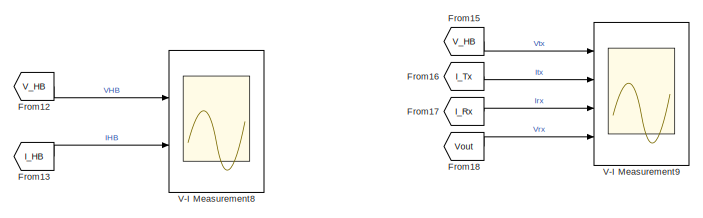
[diagram: root canvas - part 1/14, top right region]
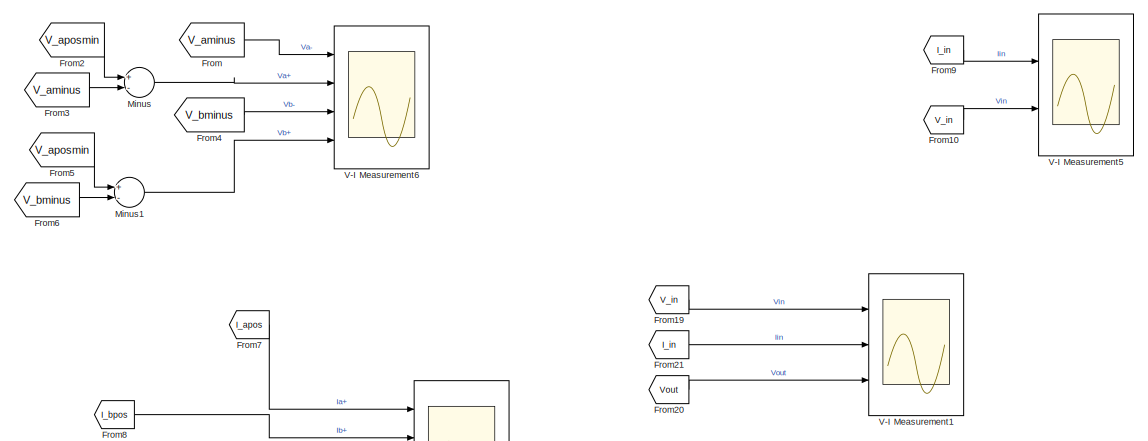
[diagram: root canvas - part 2/14, top center region]
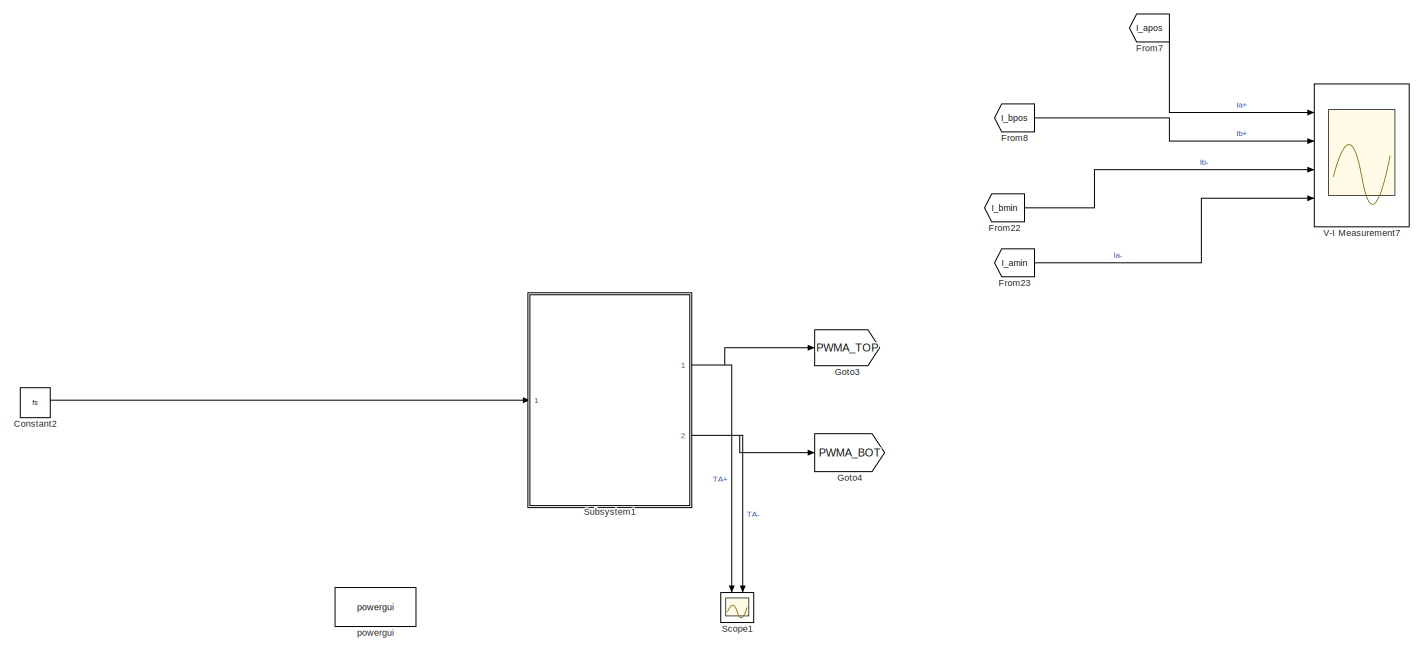
[diagram: root canvas - part 3/14, top center region]
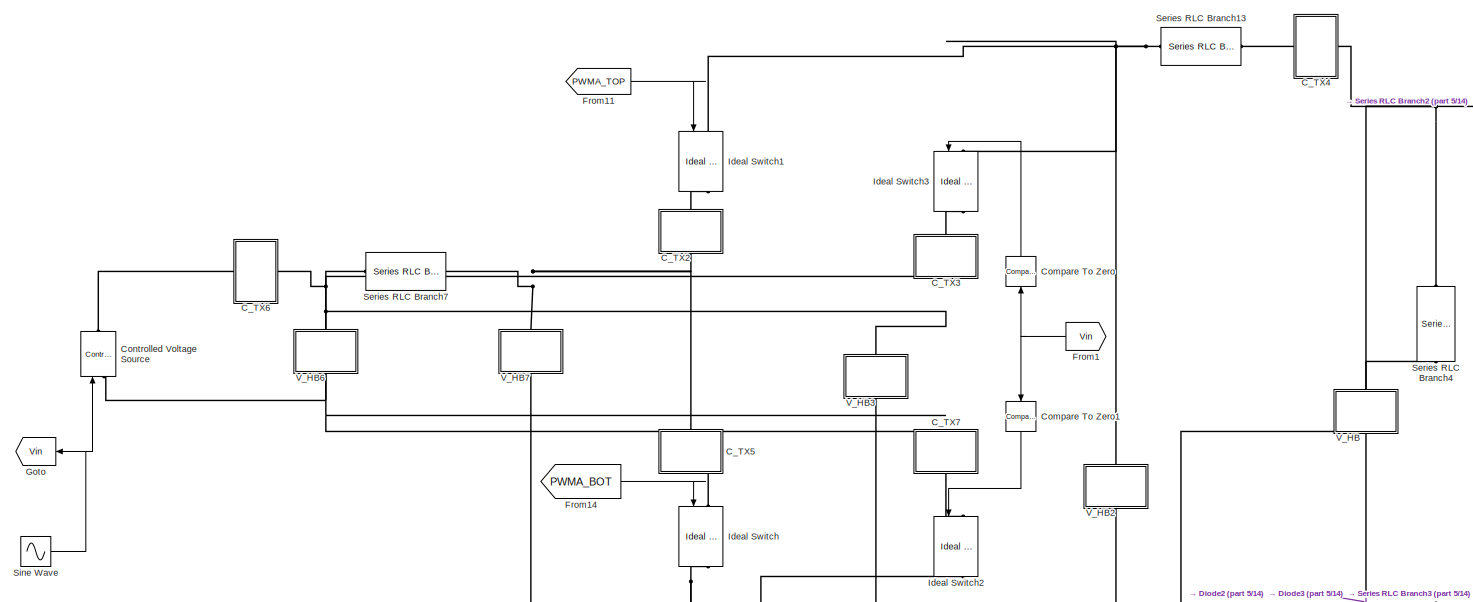
[diagram: root canvas - part 4/14, middle left region]
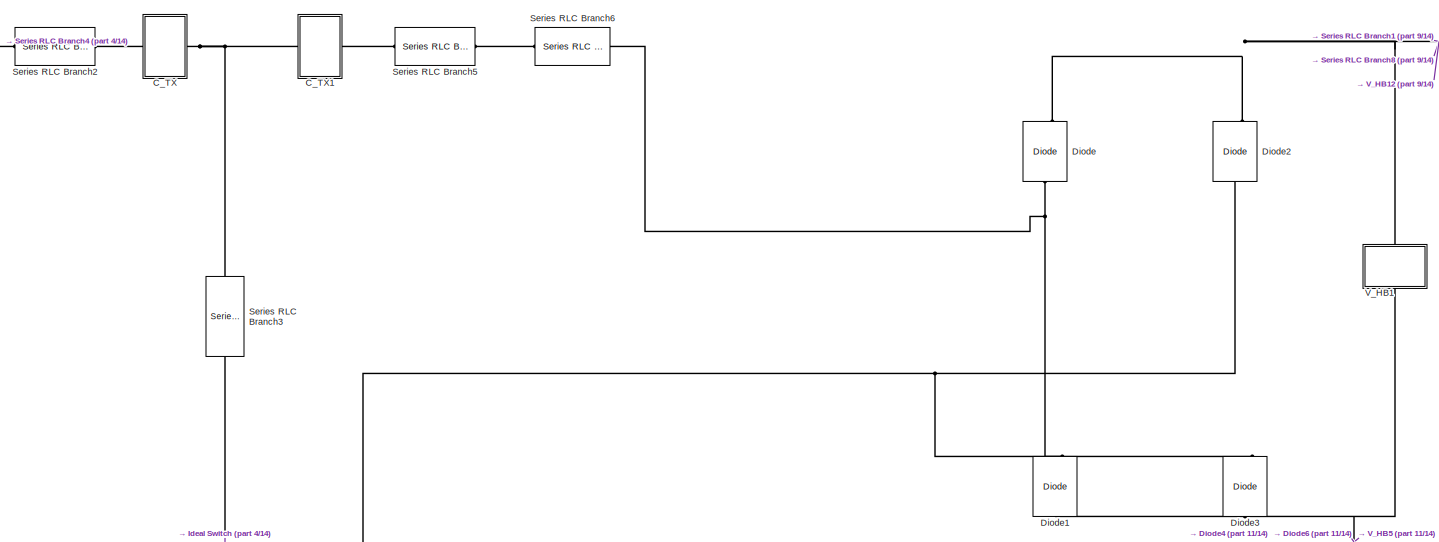
[diagram: root canvas - part 5/14, central region]
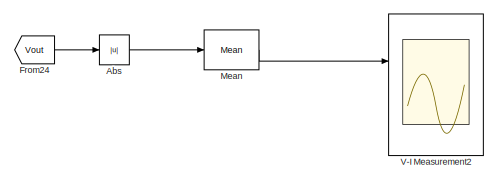
[diagram: root canvas - part 6/14, middle right region]
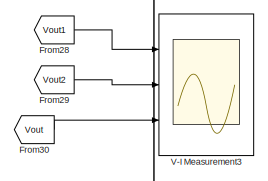
[diagram: root canvas - part 7/14, central region]
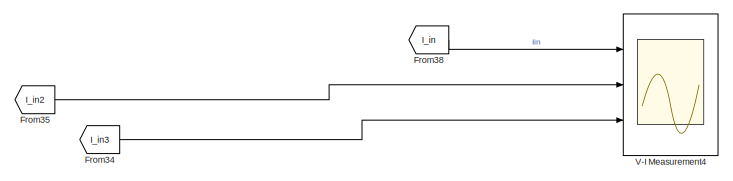
[diagram: root canvas - part 8/14, middle left region]
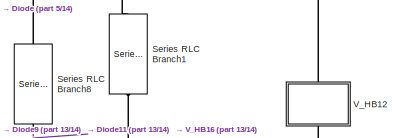
[diagram: root canvas - part 9/14, middle right region]
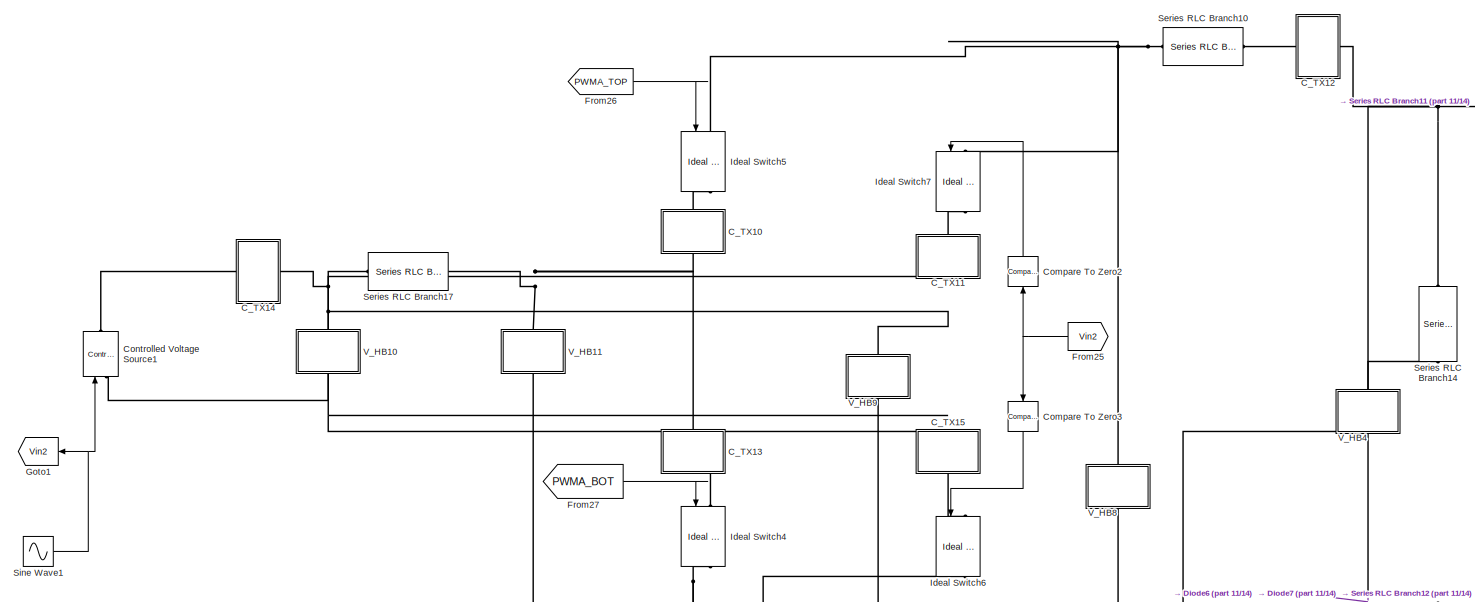
[diagram: root canvas - part 10/14, middle left region]
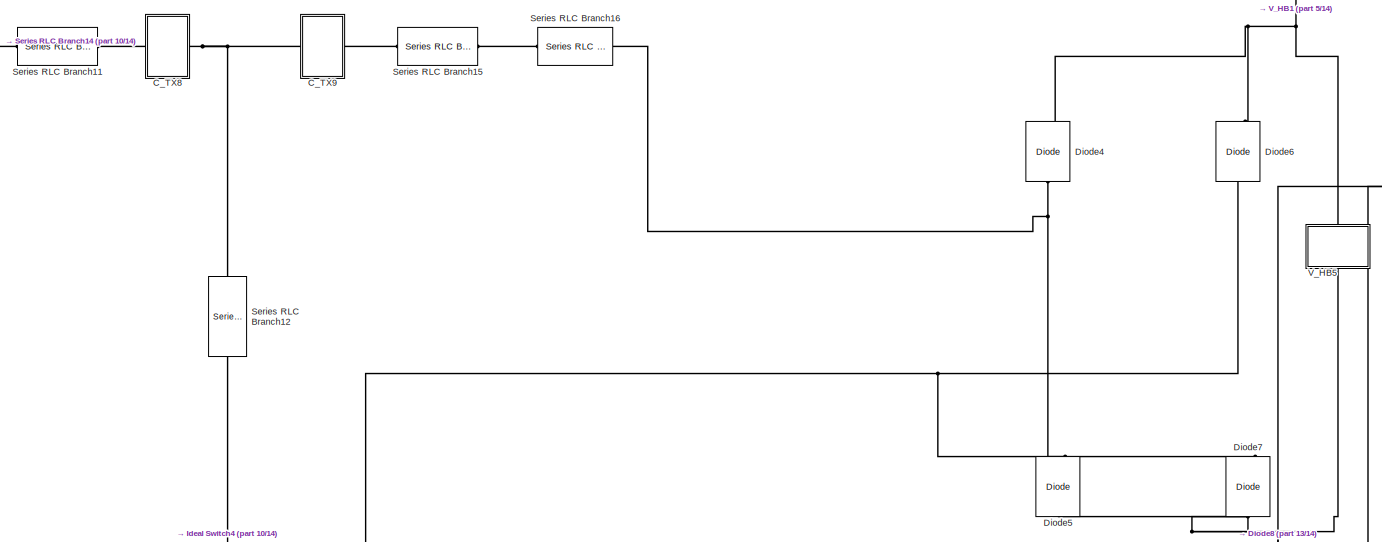
[diagram: root canvas - part 11/14, central region]
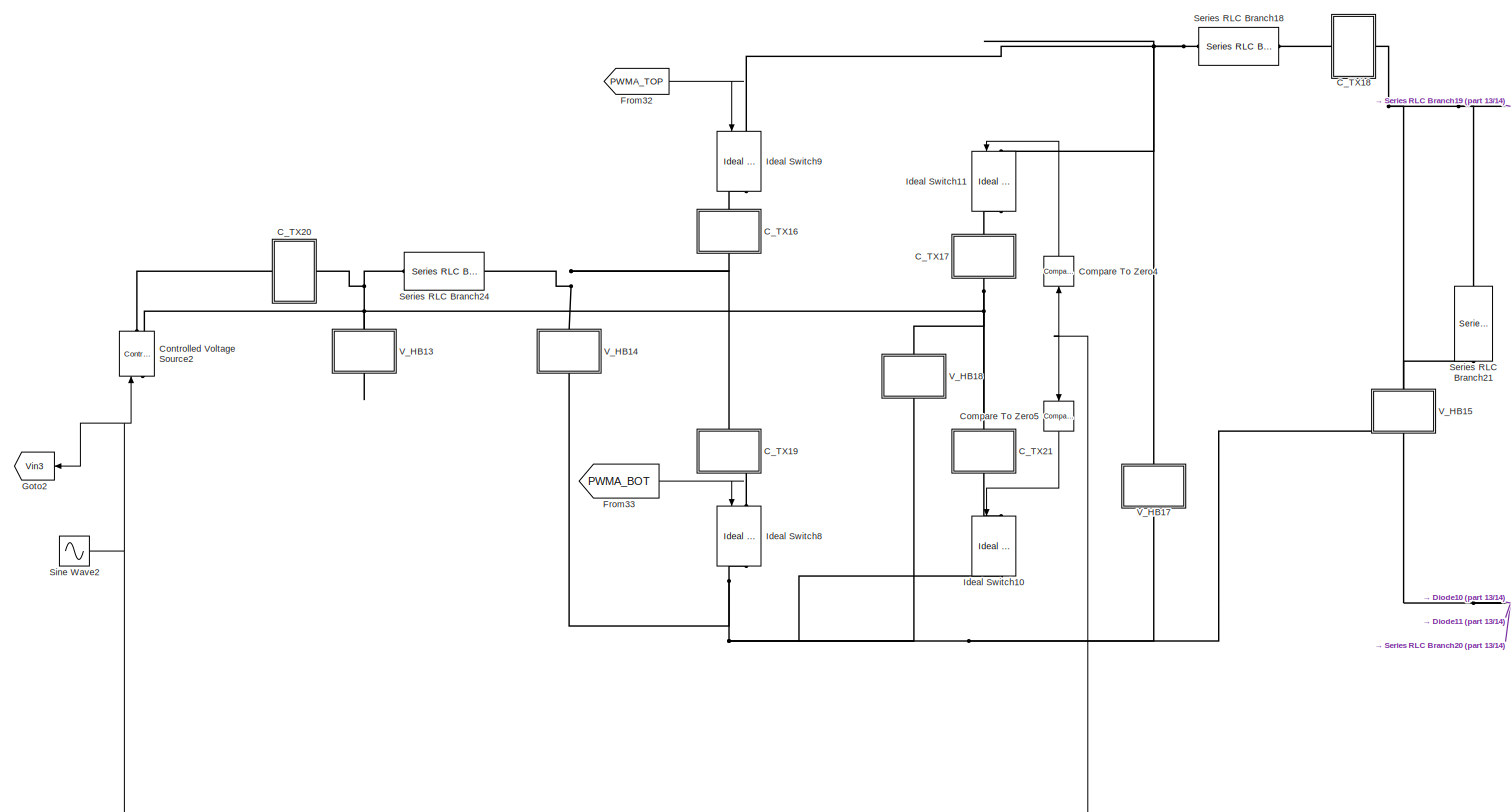
[diagram: root canvas - part 12/14, bottom left region]
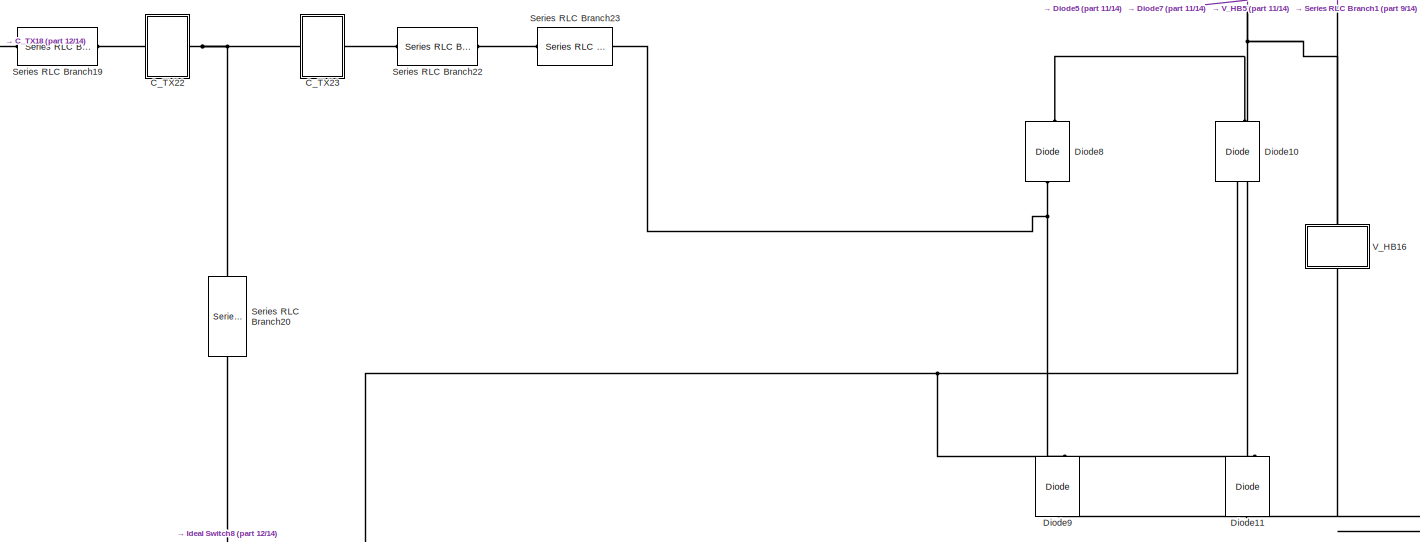
[diagram: root canvas - part 13/14, bottom center region]
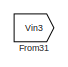
[diagram: root canvas - part 14/14, bottom left region]
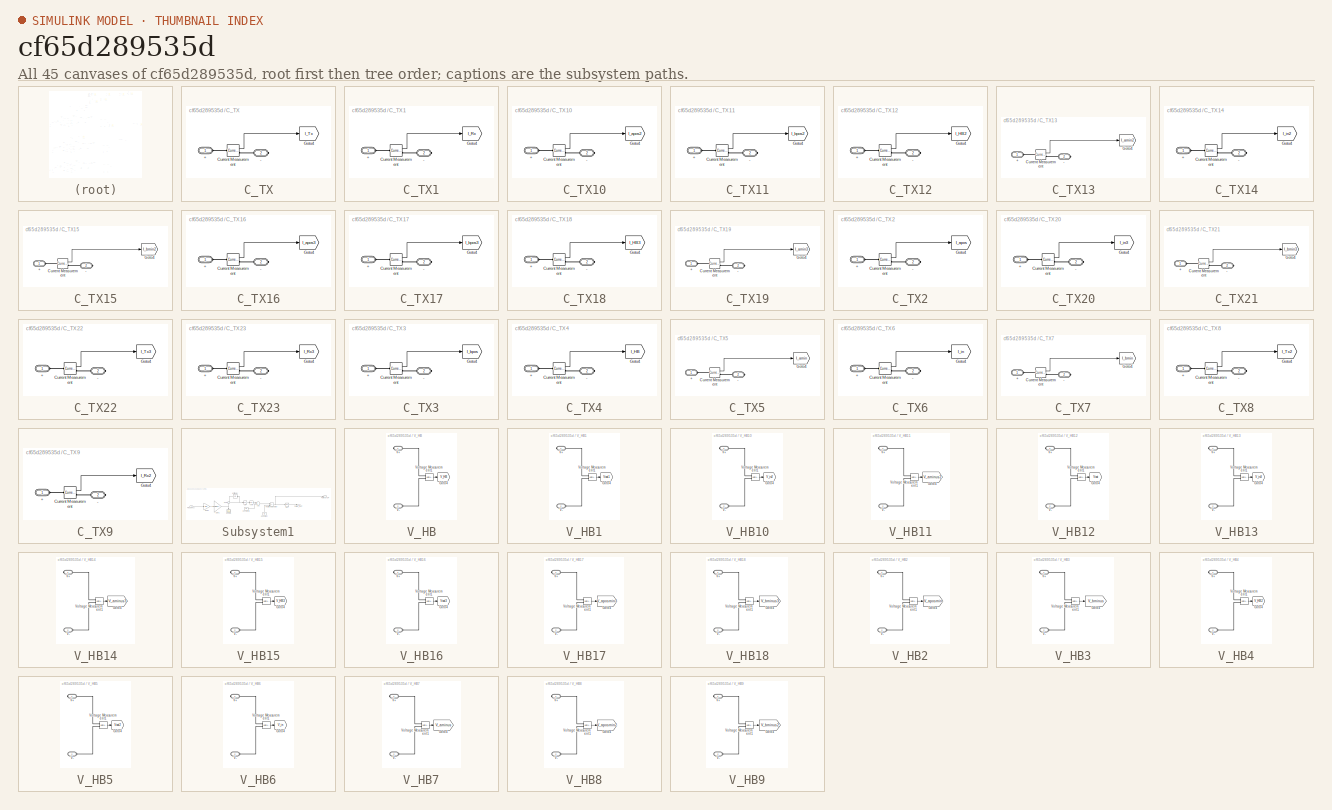
[diagram: thumbnail index - all 45 canvases of the model, root first then tree order]
MODEL slx_cf65d289535d
KIND model
CONFIG AbsTol = auto
CONFIG EnableMultiTasking = off
CONFIG FixedStep = sampleTime
CONFIG InitFcn = fs=150e3; %Hz\nwo=2*pi*fs;\nstopTime=0.1;\nsampleTime=1e-8;\nLp=81e-6; \nLp=32e-6;\nLs=66e-6;\nCs=1/ (Ls*4*pi*pi*150e3*150e3);\nCp=1/ (Lp*4*pi*pi*150e3*150e3);\nRLOAD=20\nRLOAD=16.2\nk=0.2;\nM=sqrt(Lp*Ls)*k;\nCout=1e-6; %F\nfs=150e3*sqrt(1+k^2); %Hz\nRp=0.2
CONFIG MaxStep = auto
CONFIG MinStep = auto
CONFIG RelTol = 1e-3
CONFIG SampleTimeConstraint = Unconstrained
CONFIG Solver = FixedStepAuto
CONFIG SolverName = FixedStepAuto
CONFIG StartTime = 0.0
CONFIG StopTime = stopTime
BLOCK [Abs] Abs
  SaturateOnIntegerOverflow = off
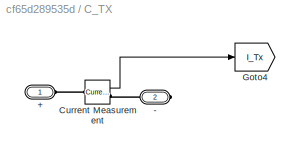
BLOCK [SubSystem] C_TX
  Ports = [0, 0, 0, 0, 0, 1, 1]
  RequestExecContextInheritance = off
BLOCK [PMIOPort] C_TX/+
  Side = Left
BLOCK [PMIOPort] C_TX/-
  Port = 2
  Side = Right
BLOCK [Reference] C_TX/Current Measurement  REF=powerlib/Measurements/Current Measurement
  Ports = [0, 1, 0, 0, 0, 1, 1]
  SourceBlock = powerlib/Measurements/Current Measurement
  SourceProductBaseCode = PS
  SourceProductName = Simscape Power Systems
  SourceType = Current Measurement
  UserDataPersistent = on
BLOCK [Goto] C_TX/Goto4
  GotoTag = I_Tx
  TagVisibility = global
BLOCK [SubSystem] C_TX1
  Ports = [0, 0, 0, 0, 0, 1, 1]
  RequestExecContextInheritance = off
BLOCK [PMIOPort] C_TX1/+
  Side = Left
BLOCK [PMIOPort] C_TX1/-
  Port = 2
  Side = Right
BLOCK [Reference] C_TX1/Current Measurement  REF=powerlib/Measurements/Current Measurement
  Ports = [0, 1, 0, 0, 0, 1, 1]
  SourceBlock = powerlib/Measurements/Current Measurement
  SourceProductBaseCode = PS
  SourceProductName = Simscape Power Systems
  SourceType = Current Measurement
  UserDataPersistent = on
BLOCK [Goto] C_TX1/Goto4
  GotoTag = I_Rx
  TagVisibility = global
BLOCK [SubSystem] C_TX10
  Ports = [0, 0, 0, 0, 0, 1, 1]
  RequestExecContextInheritance = off
BLOCK [PMIOPort] C_TX10/+
  Side = Left
BLOCK [PMIOPort] C_TX10/-
  Port = 2
  Side = Right
BLOCK [Reference] C_TX10/Current Measurement  REF=powerlib/Measurements/Current Measurement
  Ports = [0, 1, 0, 0, 0, 1, 1]
  SourceBlock = powerlib/Measurements/Current Measurement
  SourceProductBaseCode = PS
  SourceProductName = Simscape Power Systems
  SourceType = Current Measurement
  UserDataPersistent = on
BLOCK [Goto] C_TX10/Goto4
  GotoTag = I_apos2
  TagVisibility = global
BLOCK [SubSystem] C_TX11
  Ports = [0, 0, 0, 0, 0, 1, 1]
  RequestExecContextInheritance = off
BLOCK [PMIOPort] C_TX11/+
  Side = Left
BLOCK [PMIOPort] C_TX11/-
  Port = 2
  Side = Right
BLOCK [Reference] C_TX11/Current Measurement  REF=powerlib/Measurements/Current Measurement
  Ports = [0, 1, 0, 0, 0, 1, 1]
  SourceBlock = powerlib/Measurements/Current Measurement
  SourceProductBaseCode = PS
  SourceProductName = Simscape Power Systems
  SourceType = Current Measurement
  UserDataPersistent = on
BLOCK [Goto] C_TX11/Goto4
  GotoTag = I_bpos2
  TagVisibility = global
BLOCK [SubSystem] C_TX12
  Ports = [0, 0, 0, 0, 0, 1, 1]
  RequestExecContextInheritance = off
BLOCK [PMIOPort] C_TX12/+
  Side = Left
BLOCK [PMIOPort] C_TX12/-
  Port = 2
  Side = Right
BLOCK [Reference] C_TX12/Current Measurement  REF=powerlib/Measurements/Current Measurement
  Ports = [0, 1, 0, 0, 0, 1, 1]
  SourceBlock = powerlib/Measurements/Current Measurement
  SourceProductBaseCode = PS
  SourceProductName = Simscape Power Systems
  SourceType = Current Measurement
  UserDataPersistent = on
BLOCK [Goto] C_TX12/Goto4
  GotoTag = I_HB2
  TagVisibility = global
BLOCK [SubSystem] C_TX13
  Ports = [0, 0, 0, 0, 0, 1, 1]
  RequestExecContextInheritance = off
BLOCK [PMIOPort] C_TX13/+
  Side = Left
BLOCK [PMIOPort] C_TX13/-
  Port = 2
  Side = Right
BLOCK [Reference] C_TX13/Current Measurement  REF=powerlib/Measurements/Current Measurement
  Ports = [0, 1, 0, 0, 0, 1, 1]
  SourceBlock = powerlib/Measurements/Current Measurement
  SourceProductBaseCode = PS
  SourceProductName = Simscape Power Systems
  SourceType = Current Measurement
  UserDataPersistent = on
BLOCK [Goto] C_TX13/Goto4
  GotoTag = I_amin2
  TagVisibility = global
BLOCK [SubSystem] C_TX14
  Ports = [0, 0, 0, 0, 0, 1, 1]
  RequestExecContextInheritance = off
BLOCK [PMIOPort] C_TX14/+
  Side = Left
BLOCK [PMIOPort] C_TX14/-
  Port = 2
  Side = Right
BLOCK [Reference] C_TX14/Current Measurement  REF=powerlib/Measurements/Current Measurement
  Ports = [0, 1, 0, 0, 0, 1, 1]
  SourceBlock = powerlib/Measurements/Current Measurement
  SourceProductBaseCode = PS
  SourceProductName = Simscape Power Systems
  SourceType = Current Measurement
  UserDataPersistent = on
BLOCK [Goto] C_TX14/Goto4
  GotoTag = I_in2
  TagVisibility = global
BLOCK [SubSystem] C_TX15
  Ports = [0, 0, 0, 0, 0, 1, 1]
  RequestExecContextInheritance = off
BLOCK [PMIOPort] C_TX15/+
  Side = Left
BLOCK [PMIOPort] C_TX15/-
  Port = 2
  Side = Right
BLOCK [Reference] C_TX15/Current Measurement  REF=powerlib/Measurements/Current Measurement
  Ports = [0, 1, 0, 0, 0, 1, 1]
  SourceBlock = powerlib/Measurements/Current Measurement
  SourceProductBaseCode = PS
  SourceProductName = Simscape Power Systems
  SourceType = Current Measurement
  UserDataPersistent = on
BLOCK [Goto] C_TX15/Goto4
  GotoTag = I_bmin2
  TagVisibility = global
BLOCK [SubSystem] C_TX16
  Ports = [0, 0, 0, 0, 0, 1, 1]
  RequestExecContextInheritance = off
BLOCK [PMIOPort] C_TX16/+
  Side = Left
BLOCK [PMIOPort] C_TX16/-
  Port = 2
  Side = Right
BLOCK [Reference] C_TX16/Current Measurement  REF=powerlib/Measurements/Current Measurement
  Ports = [0, 1, 0, 0, 0, 1, 1]
  SourceBlock = powerlib/Measurements/Current Measurement
  SourceProductBaseCode = PS
  SourceProductName = Simscape Power Systems
  SourceType = Current Measurement
  UserDataPersistent = on
BLOCK [Goto] C_TX16/Goto4
  GotoTag = I_apos3
  TagVisibility = global
BLOCK [SubSystem] C_TX17
  Ports = [0, 0, 0, 0, 0, 1, 1]
  RequestExecContextInheritance = off
BLOCK [PMIOPort] C_TX17/+
  Side = Left
BLOCK [PMIOPort] C_TX17/-
  Port = 2
  Side = Right
BLOCK [Reference] C_TX17/Current Measurement  REF=powerlib/Measurements/Current Measurement
  Ports = [0, 1, 0, 0, 0, 1, 1]
  SourceBlock = powerlib/Measurements/Current Measurement
  SourceProductBaseCode = PS
  SourceProductName = Simscape Power Systems
  SourceType = Current Measurement
  UserDataPersistent = on
BLOCK [Goto] C_TX17/Goto4
  GotoTag = I_bpos3
  TagVisibility = global
BLOCK [SubSystem] C_TX18
  Ports = [0, 0, 0, 0, 0, 1, 1]
  RequestExecContextInheritance = off
BLOCK [PMIOPort] C_TX18/+
  Side = Left
BLOCK [PMIOPort] C_TX18/-
  Port = 2
  Side = Right
BLOCK [Reference] C_TX18/Current Measurement  REF=powerlib/Measurements/Current Measurement
  Ports = [0, 1, 0, 0, 0, 1, 1]
  SourceBlock = powerlib/Measurements/Current Measurement
  SourceProductBaseCode = PS
  SourceProductName = Simscape Power Systems
  SourceType = Current Measurement
  UserDataPersistent = on
BLOCK [Goto] C_TX18/Goto4
  GotoTag = I_HB3
  TagVisibility = global
BLOCK [SubSystem] C_TX19
  Ports = [0, 0, 0, 0, 0, 1, 1]
  RequestExecContextInheritance = off
BLOCK [PMIOPort] C_TX19/+
  Side = Left
BLOCK [PMIOPort] C_TX19/-
  Port = 2
  Side = Right
BLOCK [Reference] C_TX19/Current Measurement  REF=powerlib/Measurements/Current Measurement
  Ports = [0, 1, 0, 0, 0, 1, 1]
  SourceBlock = powerlib/Measurements/Current Measurement
  SourceProductBaseCode = PS
  SourceProductName = Simscape Power Systems
  SourceType = Current Measurement
  UserDataPersistent = on
BLOCK [Goto] C_TX19/Goto4
  GotoTag = I_amin3
  TagVisibility = global
BLOCK [SubSystem] C_TX2
  Ports = [0, 0, 0, 0, 0, 1, 1]
  RequestExecContextInheritance = off
BLOCK [PMIOPort] C_TX2/+
  Side = Left
BLOCK [PMIOPort] C_TX2/-
  Port = 2
  Side = Right
BLOCK [Reference] C_TX2/Current Measurement  REF=powerlib/Measurements/Current Measurement
  Ports = [0, 1, 0, 0, 0, 1, 1]
  SourceBlock = powerlib/Measurements/Current Measurement
  SourceProductBaseCode = PS
  SourceProductName = Simscape Power Systems
  SourceType = Current Measurement
  UserDataPersistent = on
BLOCK [Goto] C_TX2/Goto4
  GotoTag = I_apos
  TagVisibility = global
BLOCK [SubSystem] C_TX20
  Ports = [0, 0, 0, 0, 0, 1, 1]
  RequestExecContextInheritance = off
BLOCK [PMIOPort] C_TX20/+
  Side = Left
BLOCK [PMIOPort] C_TX20/-
  Port = 2
  Side = Right
BLOCK [Reference] C_TX20/Current Measurement  REF=powerlib/Measurements/Current Measurement
  Ports = [0, 1, 0, 0, 0, 1, 1]
  SourceBlock = powerlib/Measurements/Current Measurement
  SourceProductBaseCode = PS
  SourceProductName = Simscape Power Systems
  SourceType = Current Measurement
  UserDataPersistent = on
BLOCK [Goto] C_TX20/Goto4
  GotoTag = I_in3
  TagVisibility = global
BLOCK [SubSystem] C_TX21
  Ports = [0, 0, 0, 0, 0, 1, 1]
  RequestExecContextInheritance = off
BLOCK [PMIOPort] C_TX21/+
  Side = Left
BLOCK [PMIOPort] C_TX21/-
  Port = 2
  Side = Right
BLOCK [Reference] C_TX21/Current Measurement  REF=powerlib/Measurements/Current Measurement
  Ports = [0, 1, 0, 0, 0, 1, 1]
  SourceBlock = powerlib/Measurements/Current Measurement
  SourceProductBaseCode = PS
  SourceProductName = Simscape Power Systems
  SourceType = Current Measurement
  UserDataPersistent = on
BLOCK [Goto] C_TX21/Goto4
  GotoTag = I_bmin3
  TagVisibility = global
BLOCK [SubSystem] C_TX22
  Ports = [0, 0, 0, 0, 0, 1, 1]
  RequestExecContextInheritance = off
BLOCK [PMIOPort] C_TX22/+
  Side = Left
BLOCK [PMIOPort] C_TX22/-
  Port = 2
  Side = Right
BLOCK [Reference] C_TX22/Current Measurement  REF=powerlib/Measurements/Current Measurement
  Ports = [0, 1, 0, 0, 0, 1, 1]
  SourceBlock = powerlib/Measurements/Current Measurement
  SourceProductBaseCode = PS
  SourceProductName = Simscape Power Systems
  SourceType = Current Measurement
  UserDataPersistent = on
BLOCK [Goto] C_TX22/Goto4
  GotoTag = I_Tx3
  TagVisibility = global
BLOCK [SubSystem] C_TX23
  Ports = [0, 0, 0, 0, 0, 1, 1]
  RequestExecContextInheritance = off
BLOCK [PMIOPort] C_TX23/+
  Side = Left
BLOCK [PMIOPort] C_TX23/-
  Port = 2
  Side = Right
BLOCK [Reference] C_TX23/Current Measurement  REF=powerlib/Measurements/Current Measurement
  Ports = [0, 1, 0, 0, 0, 1, 1]
  SourceBlock = powerlib/Measurements/Current Measurement
  SourceProductBaseCode = PS
  SourceProductName = Simscape Power Systems
  SourceType = Current Measurement
  UserDataPersistent = on
BLOCK [Goto] C_TX23/Goto4
  GotoTag = I_Rx3
  TagVisibility = global
BLOCK [SubSystem] C_TX3
  Ports = [0, 0, 0, 0, 0, 1, 1]
  RequestExecContextInheritance = off
BLOCK [PMIOPort] C_TX3/+
  Side = Left
BLOCK [PMIOPort] C_TX3/-
  Port = 2
  Side = Right
BLOCK [Reference] C_TX3/Current Measurement  REF=powerlib/Measurements/Current Measurement
  Ports = [0, 1, 0, 0, 0, 1, 1]
  SourceBlock = powerlib/Measurements/Current Measurement
  SourceProductBaseCode = PS
  SourceProductName = Simscape Power Systems
  SourceType = Current Measurement
  UserDataPersistent = on
BLOCK [Goto] C_TX3/Goto4
  GotoTag = I_bpos
  TagVisibility = global
BLOCK [SubSystem] C_TX4
  Ports = [0, 0, 0, 0, 0, 1, 1]
  RequestExecContextInheritance = off
BLOCK [PMIOPort] C_TX4/+
  Side = Left
BLOCK [PMIOPort] C_TX4/-
  Port = 2
  Side = Right
BLOCK [Reference] C_TX4/Current Measurement  REF=powerlib/Measurements/Current Measurement
  Ports = [0, 1, 0, 0, 0, 1, 1]
  SourceBlock = powerlib/Measurements/Current Measurement
  SourceProductBaseCode = PS
  SourceProductName = Simscape Power Systems
  SourceType = Current Measurement
  UserDataPersistent = on
BLOCK [Goto] C_TX4/Goto4
  GotoTag = I_HB
  TagVisibility = global
BLOCK [SubSystem] C_TX5
  Ports = [0, 0, 0, 0, 0, 1, 1]
  RequestExecContextInheritance = off
BLOCK [PMIOPort] C_TX5/+
  Side = Left
BLOCK [PMIOPort] C_TX5/-
  Port = 2
  Side = Right
BLOCK [Reference] C_TX5/Current Measurement  REF=powerlib/Measurements/Current Measurement
  Ports = [0, 1, 0, 0, 0, 1, 1]
  SourceBlock = powerlib/Measurements/Current Measurement
  SourceProductBaseCode = PS
  SourceProductName = Simscape Power Systems
  SourceType = Current Measurement
  UserDataPersistent = on
BLOCK [Goto] C_TX5/Goto4
  GotoTag = I_amin
  TagVisibility = global
BLOCK [SubSystem] C_TX6
  Ports = [0, 0, 0, 0, 0, 1, 1]
  RequestExecContextInheritance = off
BLOCK [PMIOPort] C_TX6/+
  Side = Left
BLOCK [PMIOPort] C_TX6/-
  Port = 2
  Side = Right
BLOCK [Reference] C_TX6/Current Measurement  REF=powerlib/Measurements/Current Measurement
  Ports = [0, 1, 0, 0, 0, 1, 1]
  SourceBlock = powerlib/Measurements/Current Measurement
  SourceProductBaseCode = PS
  SourceProductName = Simscape Power Systems
  SourceType = Current Measurement
  UserDataPersistent = on
BLOCK [Goto] C_TX6/Goto4
  GotoTag = I_in
  TagVisibility = global
BLOCK [SubSystem] C_TX7
  Ports = [0, 0, 0, 0, 0, 1, 1]
  RequestExecContextInheritance = off
BLOCK [PMIOPort] C_TX7/+
  Side = Left
BLOCK [PMIOPort] C_TX7/-
  Port = 2
  Side = Right
BLOCK [Reference] C_TX7/Current Measurement  REF=powerlib/Measurements/Current Measurement
  Ports = [0, 1, 0, 0, 0, 1, 1]
  SourceBlock = powerlib/Measurements/Current Measurement
  SourceProductBaseCode = PS
  SourceProductName = Simscape Power Systems
  SourceType = Current Measurement
  UserDataPersistent = on
BLOCK [Goto] C_TX7/Goto4
  GotoTag = I_bmin
  TagVisibility = global
BLOCK [SubSystem] C_TX8
  Ports = [0, 0, 0, 0, 0, 1, 1]
  RequestExecContextInheritance = off
BLOCK [PMIOPort] C_TX8/+
  Side = Left
BLOCK [PMIOPort] C_TX8/-
  Port = 2
  Side = Right
BLOCK [Reference] C_TX8/Current Measurement  REF=powerlib/Measurements/Current Measurement
  Ports = [0, 1, 0, 0, 0, 1, 1]
  SourceBlock = powerlib/Measurements/Current Measurement
  SourceProductBaseCode = PS
  SourceProductName = Simscape Power Systems
  SourceType = Current Measurement
  UserDataPersistent = on
BLOCK [Goto] C_TX8/Goto4
  GotoTag = I_Tx2
  TagVisibility = global
BLOCK [SubSystem] C_TX9
  Ports = [0, 0, 0, 0, 0, 1, 1]
  RequestExecContextInheritance = off
BLOCK [PMIOPort] C_TX9/+
  Side = Left
BLOCK [PMIOPort] C_TX9/-
  Port = 2
  Side = Right
BLOCK [Reference] C_TX9/Current Measurement  REF=powerlib/Measurements/Current Measurement
  Ports = [0, 1, 0, 0, 0, 1, 1]
  SourceBlock = powerlib/Measurements/Current Measurement
  SourceProductBaseCode = PS
  SourceProductName = Simscape Power Systems
  SourceType = Current Measurement
  UserDataPersistent = on
BLOCK [Goto] C_TX9/Goto4
  GotoTag = I_Rx2
  TagVisibility = global
BLOCK [Reference] Compare To Zero  REF=simulink/Logic and Bit
Operations/Compare
To Zero
  Ports = [1, 1]
  SourceBlock = simulink/Logic and Bit\nOperations/Compare\nTo Zero
  SourceProductBaseCode = SL
  SourceProductName = Simulink
  SourceType = Compare To Zero
BLOCK [Reference] Compare To Zero1  REF=simulink/Logic and Bit
Operations/Compare
To Zero
  Ports = [1, 1]
  SourceBlock = simulink/Logic and Bit\nOperations/Compare\nTo Zero
  SourceProductBaseCode = SL
  SourceProductName = Simulink
  SourceType = Compare To Zero
BLOCK [Reference] Compare To Zero2  REF=simulink/Logic and Bit
Operations/Compare
To Zero
  Ports = [1, 1]
  SourceBlock = simulink/Logic and Bit\nOperations/Compare\nTo Zero
  SourceProductBaseCode = SL
  SourceProductName = Simulink
  SourceType = Compare To Zero
BLOCK [Reference] Compare To Zero3  REF=simulink/Logic and Bit
Operations/Compare
To Zero
  Ports = [1, 1]
  SourceBlock = simulink/Logic and Bit\nOperations/Compare\nTo Zero
  SourceProductBaseCode = SL
  SourceProductName = Simulink
  SourceType = Compare To Zero
BLOCK [Reference] Compare To Zero4  REF=simulink/Logic and Bit
Operations/Compare
To Zero
  Ports = [1, 1]
  SourceBlock = simulink/Logic and Bit\nOperations/Compare\nTo Zero
  SourceProductBaseCode = SL
  SourceProductName = Simulink
  SourceType = Compare To Zero
BLOCK [Reference] Compare To Zero5  REF=simulink/Logic and Bit
Operations/Compare
To Zero
  Ports = [1, 1]
  SourceBlock = simulink/Logic and Bit\nOperations/Compare\nTo Zero
  SourceProductBaseCode = SL
  SourceProductName = Simulink
  SourceType = Compare To Zero
BLOCK [Constant] Constant2
  Value = fs
BLOCK [Reference] Controlled Voltage Source  REF=powerlib/Electrical
Sources/Controlled Voltage Source
  Ports = [1, 0, 0, 0, 0, 1, 1]
  SourceBlock = powerlib/Electrical\nSources/Controlled Voltage Source
  SourceProductBaseCode = PS
  SourceProductName = Simscape Power Systems
  SourceType = Controlled Voltage Source
BLOCK [Reference] Controlled Voltage Source1  REF=powerlib/Electrical
Sources/Controlled Voltage Source
  Ports = [1, 0, 0, 0, 0, 1, 1]
  SourceBlock = powerlib/Electrical\nSources/Controlled Voltage Source
  SourceProductBaseCode = PS
  SourceProductName = Simscape Power Systems
  SourceType = Controlled Voltage Source
BLOCK [Reference] Controlled Voltage Source2  REF=powerlib/Electrical
Sources/Controlled Voltage Source
  Ports = [1, 0, 0, 0, 0, 1, 1]
  SourceBlock = powerlib/Electrical\nSources/Controlled Voltage Source
  SourceProductBaseCode = PS
  SourceProductName = Simscape Power Systems
  SourceType = Controlled Voltage Source
BLOCK [Reference] Diode  REF=powerlib/Power
Electronics/Diode
  Ports = [0, 1, 0, 0, 0, 1, 1]
  SourceBlock = powerlib/Power\nElectronics/Diode
  SourceProductBaseCode = PS
  SourceProductName = Simscape Power Systems
  SourceType = Diode
BLOCK [Reference] Diode1  REF=powerlib/Power
Electronics/Diode
  Ports = [0, 1, 0, 0, 0, 1, 1]
  SourceBlock = powerlib/Power\nElectronics/Diode
  SourceProductBaseCode = PS
  SourceProductName = Simscape Power Systems
  SourceType = Diode
BLOCK [Reference] Diode10  REF=powerlib/Power
Electronics/Diode
  Ports = [0, 1, 0, 0, 0, 1, 1]
  SourceBlock = powerlib/Power\nElectronics/Diode
  SourceProductBaseCode = PS
  SourceProductName = Simscape Power Systems
  SourceType = Diode
BLOCK [Reference] Diode11  REF=powerlib/Power
Electronics/Diode
  Ports = [0, 1, 0, 0, 0, 1, 1]
  SourceBlock = powerlib/Power\nElectronics/Diode
  SourceProductBaseCode = PS
  SourceProductName = Simscape Power Systems
  SourceType = Diode
BLOCK [Reference] Diode2  REF=powerlib/Power
Electronics/Diode
  Ports = [0, 1, 0, 0, 0, 1, 1]
  SourceBlock = powerlib/Power\nElectronics/Diode
  SourceProductBaseCode = PS
  SourceProductName = Simscape Power Systems
  SourceType = Diode
BLOCK [Reference] Diode3  REF=powerlib/Power
Electronics/Diode
  Ports = [0, 1, 0, 0, 0, 1, 1]
  SourceBlock = powerlib/Power\nElectronics/Diode
  SourceProductBaseCode = PS
  SourceProductName = Simscape Power Systems
  SourceType = Diode
BLOCK [Reference] Diode4  REF=powerlib/Power
Electronics/Diode
  Ports = [0, 1, 0, 0, 0, 1, 1]
  SourceBlock = powerlib/Power\nElectronics/Diode
  SourceProductBaseCode = PS
  SourceProductName = Simscape Power Systems
  SourceType = Diode
BLOCK [Reference] Diode5  REF=powerlib/Power
Electronics/Diode
  Ports = [0, 1, 0, 0, 0, 1, 1]
  SourceBlock = powerlib/Power\nElectronics/Diode
  SourceProductBaseCode = PS
  SourceProductName = Simscape Power Systems
  SourceType = Diode
BLOCK [Reference] Diode6  REF=powerlib/Power
Electronics/Diode
  Ports = [0, 1, 0, 0, 0, 1, 1]
  SourceBlock = powerlib/Power\nElectronics/Diode
  SourceProductBaseCode = PS
  SourceProductName = Simscape Power Systems
  SourceType = Diode
BLOCK [Reference] Diode7  REF=powerlib/Power
Electronics/Diode
  Ports = [0, 1, 0, 0, 0, 1, 1]
  SourceBlock = powerlib/Power\nElectronics/Diode
  SourceProductBaseCode = PS
  SourceProductName = Simscape Power Systems
  SourceType = Diode
BLOCK [Reference] Diode8  REF=powerlib/Power
Electronics/Diode
  Ports = [0, 1, 0, 0, 0, 1, 1]
  SourceBlock = powerlib/Power\nElectronics/Diode
  SourceProductBaseCode = PS
  SourceProductName = Simscape Power Systems
  SourceType = Diode
BLOCK [Reference] Diode9  REF=powerlib/Power
Electronics/Diode
  Ports = [0, 1, 0, 0, 0, 1, 1]
  SourceBlock = powerlib/Power\nElectronics/Diode
  SourceProductBaseCode = PS
  SourceProductName = Simscape Power Systems
  SourceType = Diode
BLOCK [From] From
  GotoTag = V_aminus
  TagVisibility = global
BLOCK [From] From1
  GotoTag = Vin
BLOCK [From] From10
  GotoTag = V_in
  TagVisibility = global
BLOCK [From] From11
  GotoTag = PWMA_TOP
  TagVisibility = global
BLOCK [From] From12
  GotoTag = V_HB
  TagVisibility = global
BLOCK [From] From13
  GotoTag = I_HB
  TagVisibility = global
BLOCK [From] From14
  GotoTag = PWMA_BOT
BLOCK [From] From15
  GotoTag = V_HB
  TagVisibility = global
BLOCK [From] From16
  GotoTag = I_Tx
  TagVisibility = global
BLOCK [From] From17
  GotoTag = I_Rx
  TagVisibility = global
BLOCK [From] From18
  GotoTag = Vout
  TagVisibility = global
BLOCK [From] From19
  GotoTag = V_in
  TagVisibility = global
BLOCK [From] From2
  GotoTag = V_aposmin
  TagVisibility = global
BLOCK [From] From20
  GotoTag = Vout
  TagVisibility = global
BLOCK [From] From21
  GotoTag = I_in
  TagVisibility = global
BLOCK [From] From22
  GotoTag = I_bmin
  TagVisibility = global
BLOCK [From] From23
  GotoTag = I_amin
  TagVisibility = global
BLOCK [From] From24
  GotoTag = Vout
  TagVisibility = global
BLOCK [From] From25
  GotoTag = Vin2
BLOCK [From] From26
  GotoTag = PWMA_TOP
  TagVisibility = global
BLOCK [From] From27
  GotoTag = PWMA_BOT
BLOCK [From] From28
  GotoTag = Vout1
  TagVisibility = global
BLOCK [From] From29
  GotoTag = Vout2
  TagVisibility = global
BLOCK [From] From3
  GotoTag = V_aminus
  TagVisibility = global
BLOCK [From] From30
  GotoTag = Vout
  TagVisibility = global
BLOCK [From] From31
  GotoTag = Vin3
BLOCK [From] From32
  GotoTag = PWMA_TOP
  TagVisibility = global
BLOCK [From] From33
  GotoTag = PWMA_BOT
BLOCK [From] From34
  GotoTag = I_in3
  TagVisibility = global
BLOCK [From] From35
  GotoTag = I_in2
  TagVisibility = global
BLOCK [From] From38
  GotoTag = I_in
  TagVisibility = global
BLOCK [From] From4
  GotoTag = V_bminus
  TagVisibility = global
BLOCK [From] From5
  GotoTag = V_aposmin
  TagVisibility = global
BLOCK [From] From6
  GotoTag = V_bminus
  TagVisibility = global
BLOCK [From] From7
  GotoTag = I_apos
  TagVisibility = global
BLOCK [From] From8
  GotoTag = I_bpos
  TagVisibility = global
BLOCK [From] From9
  GotoTag = I_in
  TagVisibility = global
BLOCK [Goto] Goto
  GotoTag = Vin
BLOCK [Goto] Goto1
  GotoTag = Vin2
BLOCK [Goto] Goto2
  GotoTag = Vin3
BLOCK [Goto] Goto3
  GotoTag = PWMA_TOP
  TagVisibility = global
BLOCK [Goto] Goto4
  GotoTag = PWMA_BOT
BLOCK [Reference] Ideal Switch  REF=powerlib/Power
Electronics/Ideal Switch
  Ports = [1, 1, 0, 0, 0, 1, 1]
  SourceBlock = powerlib/Power\nElectronics/Ideal Switch
  SourceProductBaseCode = PS
  SourceProductName = Simscape Power Systems
  SourceType = Ideal Switch
BLOCK [Reference] Ideal Switch1  REF=powerlib/Power
Electronics/Ideal Switch
  Ports = [1, 1, 0, 0, 0, 1, 1]
  SourceBlock = powerlib/Power\nElectronics/Ideal Switch
  SourceProductBaseCode = PS
  SourceProductName = Simscape Power Systems
  SourceType = Ideal Switch
BLOCK [Reference] Ideal Switch10  REF=powerlib/Power
Electronics/Ideal Switch
  Ports = [1, 1, 0, 0, 0, 1, 1]
  SourceBlock = powerlib/Power\nElectronics/Ideal Switch
  SourceProductBaseCode = PS
  SourceProductName = Simscape Power Systems
  SourceType = Ideal Switch
BLOCK [Reference] Ideal Switch11  REF=powerlib/Power
Electronics/Ideal Switch
  Ports = [1, 1, 0, 0, 0, 1, 1]
  SourceBlock = powerlib/Power\nElectronics/Ideal Switch
  SourceProductBaseCode = PS
  SourceProductName = Simscape Power Systems
  SourceType = Ideal Switch
BLOCK [Reference] Ideal Switch2  REF=powerlib/Power
Electronics/Ideal Switch
  Ports = [1, 1, 0, 0, 0, 1, 1]
  SourceBlock = powerlib/Power\nElectronics/Ideal Switch
  SourceProductBaseCode = PS
  SourceProductName = Simscape Power Systems
  SourceType = Ideal Switch
BLOCK [Reference] Ideal Switch3  REF=powerlib/Power
Electronics/Ideal Switch
  Ports = [1, 1, 0, 0, 0, 1, 1]
  SourceBlock = powerlib/Power\nElectronics/Ideal Switch
  SourceProductBaseCode = PS
  SourceProductName = Simscape Power Systems
  SourceType = Ideal Switch
BLOCK [Reference] Ideal Switch4  REF=powerlib/Power
Electronics/Ideal Switch
  Ports = [1, 1, 0, 0, 0, 1, 1]
  SourceBlock = powerlib/Power\nElectronics/Ideal Switch
  SourceProductBaseCode = PS
  SourceProductName = Simscape Power Systems
  SourceType = Ideal Switch
BLOCK [Reference] Ideal Switch5  REF=powerlib/Power
Electronics/Ideal Switch
  Ports = [1, 1, 0, 0, 0, 1, 1]
  SourceBlock = powerlib/Power\nElectronics/Ideal Switch
  SourceProductBaseCode = PS
  SourceProductName = Simscape Power Systems
  SourceType = Ideal Switch
BLOCK [Reference] Ideal Switch6  REF=powerlib/Power
Electronics/Ideal Switch
  Ports = [1, 1, 0, 0, 0, 1, 1]
  SourceBlock = powerlib/Power\nElectronics/Ideal Switch
  SourceProductBaseCode = PS
  SourceProductName = Simscape Power Systems
  SourceType = Ideal Switch
BLOCK [Reference] Ideal Switch7  REF=powerlib/Power
Electronics/Ideal Switch
  Ports = [1, 1, 0, 0, 0, 1, 1]
  SourceBlock = powerlib/Power\nElectronics/Ideal Switch
  SourceProductBaseCode = PS
  SourceProductName = Simscape Power Systems
  SourceType = Ideal Switch
BLOCK [Reference] Ideal Switch8  REF=powerlib/Power
Electronics/Ideal Switch
  Ports = [1, 1, 0, 0, 0, 1, 1]
  SourceBlock = powerlib/Power\nElectronics/Ideal Switch
  SourceProductBaseCode = PS
  SourceProductName = Simscape Power Systems
  SourceType = Ideal Switch
BLOCK [Reference] Ideal Switch9  REF=powerlib/Power
Electronics/Ideal Switch
  Ports = [1, 1, 0, 0, 0, 1, 1]
  SourceBlock = powerlib/Power\nElectronics/Ideal Switch
  SourceProductBaseCode = PS
  SourceProductName = Simscape Power Systems
  SourceType = Ideal Switch
BLOCK [Reference] Mean  REF=dspstat3/Mean
  Ports = [1, 1]
  SourceBlock = dspstat3/Mean
  SourceProductBaseCode = DS
  SourceProductName = DSP System Toolbox
  SourceType = Mean
  UserDataPersistent = on
BLOCK [Sum] Minus
  InputSameDT = off
  Inputs = +-
  OutDataTypeStr = Inherit: Inherit via internal rule
  Ports = [2, 1]
  SaturateOnIntegerOverflow = off
BLOCK [Sum] Minus1
  InputSameDT = off
  Inputs = +-
  OutDataTypeStr = Inherit: Inherit via internal rule
  Ports = [2, 1]
  SaturateOnIntegerOverflow = off
BLOCK [Scope] Scope1
  Floating = off
  NumInputPorts = 2
  Ports = [2]
  ScopeSpecificationString = Simulink.scopes.TimeScopeBlockCfg('CurrentConfiguration', extmgr.ConfigurationSet(extmgr.Configuration('Core','General UI',true),extmgr.Configuration('Core','Source UI',true),extmgr.Configuration('Sources','WiredSimulink',true,'DataLoggingVariableName','ScopeData1'),extmgr.Configuration('Visuals','Time Domain',true,'SerializedDisplays',{struct('MinYLimReal','0.05054','MaxYLimReal','1.05967','YLabe...<+1584ch>
BLOCK [Reference] Series RLC Branch1  REF=powerlib/Elements/Series RLC Branch
  Ports = [0, 0, 0, 0, 0, 1, 1]
  SourceBlock = powerlib/Elements/Series RLC Branch
  SourceProductBaseCode = PS
  SourceProductName = Simscape Power Systems
  SourceType = Series RLC Branch
BLOCK [Reference] Series RLC Branch10  REF=powerlib/Elements/Series RLC Branch
  Ports = [0, 0, 0, 0, 0, 1, 1]
  SourceBlock = powerlib/Elements/Series RLC Branch
  SourceProductBaseCode = PS
  SourceProductName = Simscape Power Systems
  SourceType = Series RLC Branch
BLOCK [Reference] Series RLC Branch11  REF=powerlib/Elements/Series RLC Branch
  Ports = [0, 0, 0, 0, 0, 1, 1]
  SourceBlock = powerlib/Elements/Series RLC Branch
  SourceProductBaseCode = PS
  SourceProductName = Simscape Power Systems
  SourceType = Series RLC Branch
BLOCK [Reference] Series RLC Branch12  REF=powerlib/Elements/Series RLC Branch
  Ports = [0, 0, 0, 0, 0, 1, 1]
  SourceBlock = powerlib/Elements/Series RLC Branch
  SourceProductBaseCode = PS
  SourceProductName = Simscape Power Systems
  SourceType = Series RLC Branch
BLOCK [Reference] Series RLC Branch13  REF=powerlib/Elements/Series RLC Branch
  Ports = [0, 0, 0, 0, 0, 1, 1]
  SourceBlock = powerlib/Elements/Series RLC Branch
  SourceProductBaseCode = PS
  SourceProductName = Simscape Power Systems
  SourceType = Series RLC Branch
BLOCK [Reference] Series RLC Branch14  REF=powerlib/Elements/Series RLC Branch
  Ports = [0, 0, 0, 0, 0, 1, 1]
  SourceBlock = powerlib/Elements/Series RLC Branch
  SourceProductBaseCode = PS
  SourceProductName = Simscape Power Systems
  SourceType = Series RLC Branch
BLOCK [Reference] Series RLC Branch15  REF=powerlib/Elements/Series RLC Branch
  Ports = [0, 0, 0, 0, 0, 1, 1]
  SourceBlock = powerlib/Elements/Series RLC Branch
  SourceProductBaseCode = PS
  SourceProductName = Simscape Power Systems
  SourceType = Series RLC Branch
BLOCK [Reference] Series RLC Branch16  REF=powerlib/Elements/Series RLC Branch
  Ports = [0, 0, 0, 0, 0, 1, 1]
  SourceBlock = powerlib/Elements/Series RLC Branch
  SourceProductBaseCode = PS
  SourceProductName = Simscape Power Systems
  SourceType = Series RLC Branch
BLOCK [Reference] Series RLC Branch17  REF=powerlib/Elements/Series RLC Branch
  Ports = [0, 0, 0, 0, 0, 1, 1]
  SourceBlock = powerlib/Elements/Series RLC Branch
  SourceProductBaseCode = PS
  SourceProductName = Simscape Power Systems
  SourceType = Series RLC Branch
BLOCK [Reference] Series RLC Branch18  REF=powerlib/Elements/Series RLC Branch
  Ports = [0, 0, 0, 0, 0, 1, 1]
  SourceBlock = powerlib/Elements/Series RLC Branch
  SourceProductBaseCode = PS
  SourceProductName = Simscape Power Systems
  SourceType = Series RLC Branch
BLOCK [Reference] Series RLC Branch19  REF=powerlib/Elements/Series RLC Branch
  Ports = [0, 0, 0, 0, 0, 1, 1]
  SourceBlock = powerlib/Elements/Series RLC Branch
  SourceProductBaseCode = PS
  SourceProductName = Simscape Power Systems
  SourceType = Series RLC Branch
BLOCK [Reference] Series RLC Branch2  REF=powerlib/Elements/Series RLC Branch
  Ports = [0, 0, 0, 0, 0, 1, 1]
  SourceBlock = powerlib/Elements/Series RLC Branch
  SourceProductBaseCode = PS
  SourceProductName = Simscape Power Systems
  SourceType = Series RLC Branch
BLOCK [Reference] Series RLC Branch20  REF=powerlib/Elements/Series RLC Branch
  Ports = [0, 0, 0, 0, 0, 1, 1]
  SourceBlock = powerlib/Elements/Series RLC Branch
  SourceProductBaseCode = PS
  SourceProductName = Simscape Power Systems
  SourceType = Series RLC Branch
BLOCK [Reference] Series RLC Branch21  REF=powerlib/Elements/Series RLC Branch
  Ports = [0, 0, 0, 0, 0, 1, 1]
  SourceBlock = powerlib/Elements/Series RLC Branch
  SourceProductBaseCode = PS
  SourceProductName = Simscape Power Systems
  SourceType = Series RLC Branch
BLOCK [Reference] Series RLC Branch22  REF=powerlib/Elements/Series RLC Branch
  Ports = [0, 0, 0, 0, 0, 1, 1]
  SourceBlock = powerlib/Elements/Series RLC Branch
  SourceProductBaseCode = PS
  SourceProductName = Simscape Power Systems
  SourceType = Series RLC Branch
BLOCK [Reference] Series RLC Branch23  REF=powerlib/Elements/Series RLC Branch
  Ports = [0, 0, 0, 0, 0, 1, 1]
  SourceBlock = powerlib/Elements/Series RLC Branch
  SourceProductBaseCode = PS
  SourceProductName = Simscape Power Systems
  SourceType = Series RLC Branch
BLOCK [Reference] Series RLC Branch24  REF=powerlib/Elements/Series RLC Branch
  Ports = [0, 0, 0, 0, 0, 1, 1]
  SourceBlock = powerlib/Elements/Series RLC Branch
  SourceProductBaseCode = PS
  SourceProductName = Simscape Power Systems
  SourceType = Series RLC Branch
BLOCK [Reference] Series RLC Branch3  REF=powerlib/Elements/Series RLC Branch
  Ports = [0, 0, 0, 0, 0, 1, 1]
  SourceBlock = powerlib/Elements/Series RLC Branch
  SourceProductBaseCode = PS
  SourceProductName = Simscape Power Systems
  SourceType = Series RLC Branch
BLOCK [Reference] Series RLC Branch4  REF=powerlib/Elements/Series RLC Branch
  Ports = [0, 0, 0, 0, 0, 1, 1]
  SourceBlock = powerlib/Elements/Series RLC Branch
  SourceProductBaseCode = PS
  SourceProductName = Simscape Power Systems
  SourceType = Series RLC Branch
BLOCK [Reference] Series RLC Branch5  REF=powerlib/Elements/Series RLC Branch
  Ports = [0, 0, 0, 0, 0, 1, 1]
  SourceBlock = powerlib/Elements/Series RLC Branch
  SourceProductBaseCode = PS
  SourceProductName = Simscape Power Systems
  SourceType = Series RLC Branch
BLOCK [Reference] Series RLC Branch6  REF=powerlib/Elements/Series RLC Branch
  Ports = [0, 0, 0, 0, 0, 1, 1]
  SourceBlock = powerlib/Elements/Series RLC Branch
  SourceProductBaseCode = PS
  SourceProductName = Simscape Power Systems
  SourceType = Series RLC Branch
BLOCK [Reference] Series RLC Branch7  REF=powerlib/Elements/Series RLC Branch
  Ports = [0, 0, 0, 0, 0, 1, 1]
  SourceBlock = powerlib/Elements/Series RLC Branch
  SourceProductBaseCode = PS
  SourceProductName = Simscape Power Systems
  SourceType = Series RLC Branch
BLOCK [Reference] Series RLC Branch8  REF=powerlib/Elements/Series RLC Branch
  Ports = [0, 0, 0, 0, 0, 1, 1]
  SourceBlock = powerlib/Elements/Series RLC Branch
  SourceProductBaseCode = PS
  SourceProductName = Simscape Power Systems
  SourceType = Series RLC Branch
BLOCK [Sin] Sine Wave
  Amplitude = 50
  Frequency = 2*pi*50
  Ports = [0, 1]
  SampleTime = 0
BLOCK [Sin] Sine Wave1
  Amplitude = 50
  Frequency = 2*pi*50
  Phase = 2*pi/3
  Ports = [0, 1]
  SampleTime = 0
BLOCK [Sin] Sine Wave2
  Amplitude = 50
  Frequency = 2*pi*50
  Phase = -2*pi/3
  Ports = [0, 1]
  SampleTime = 0
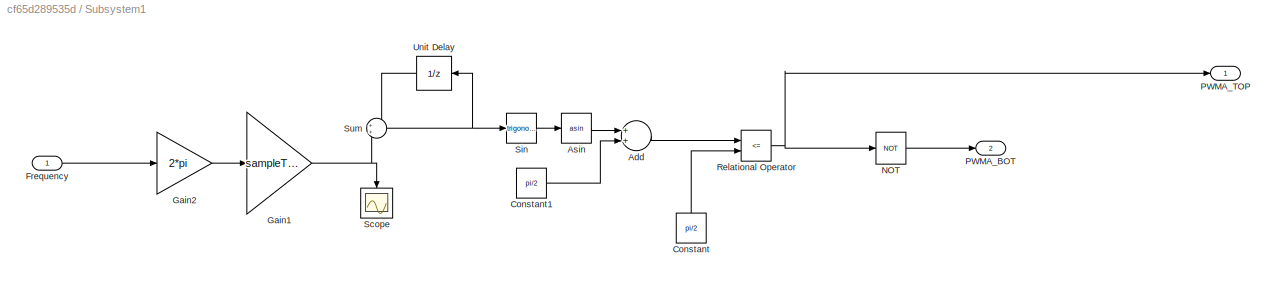
BLOCK [SubSystem] Subsystem1
  Ports = [1, 2]
  RequestExecContextInheritance = off
BLOCK [Sum] Subsystem1/Add
  InputSameDT = off
  OutDataTypeStr = Inherit: Inherit via internal rule
  Ports = [2, 1]
  SaturateOnIntegerOverflow = off
BLOCK [Trigonometry] Subsystem1/Asin
  Operator = asin
  Ports = [1, 1]
BLOCK [Constant] Subsystem1/Constant
  Value = pi/2
BLOCK [Constant] Subsystem1/Constant1
  Value = pi/2
BLOCK [Inport] Subsystem1/Frequency
  IconDisplay = Port number
BLOCK [Gain] Subsystem1/Gain1
  Gain = sampleTime
  OutDataTypeStr = Inherit: Inherit via internal rule
  ParamDataTypeStr = Inherit: Inherit via internal rule
  SaturateOnIntegerOverflow = off
BLOCK [Gain] Subsystem1/Gain2
  Gain = 2*pi
  OutDataTypeStr = Inherit: Inherit via internal rule
  ParamDataTypeStr = Inherit: Inherit via internal rule
  SaturateOnIntegerOverflow = off
BLOCK [Logic] Subsystem1/NOT
  AllPortsSameDT = off
  IconShape = distinctive
  Operator = NOT
  OutDataTypeStr = boolean
  Ports = [1, 1]
BLOCK [Outport] Subsystem1/PWMA_BOT
  IconDisplay = Port number
  Port = 2
BLOCK [Outport] Subsystem1/PWMA_TOP
  IconDisplay = Port number
BLOCK [RelationalOperator] Subsystem1/Relational Operator
  InputSameDT = off
  Operator = <=
  OutDataTypeStr = boolean
  Ports = [2, 1]
  RndMeth = Simplest
BLOCK [Scope] Subsystem1/Scope
  Floating = off
  NumInputPorts = 1
  Ports = [1]
  ScopeSpecificationString = Simulink.scopes.TimeScopeBlockCfg('CurrentConfiguration', extmgr.ConfigurationSet(extmgr.Configuration('Core','General UI',true),extmgr.Configuration('Core','Source UI',true),extmgr.Configuration('Sources','WiredSimulink',true),extmgr.Configuration('Visuals','Time Domain',true),extmgr.Configuration('Tools','Plot Navigation',true),extmgr.Configuration('Tools','Measurements',true)),'Version','2018a'...<+1ch>
BLOCK [Trigonometry] Subsystem1/Sin
  Ports = [1, 1]
BLOCK [Sum] Subsystem1/Sum
  IconShape = round
  InputSameDT = off
  OutDataTypeStr = Inherit: Inherit via internal rule
  Ports = [2, 1]
  SaturateOnIntegerOverflow = off
BLOCK [UnitDelay] Subsystem1/Unit Delay
  InputProcessing = Elements as channels (sample based)
  SampleTime = -1
BLOCK [Scope] V-I Measurement1
  Floating = off
  NumInputPorts = 3
  Ports = [3]
  ScopeSpecificationString = Simulink.scopes.TimeScopeBlockCfg('CurrentConfiguration', extmgr.ConfigurationSet(extmgr.Configuration('Core','General UI',true,'FigureColor',[0.831372549019608 0.815686274509804 0.784313725490196]),extmgr.Configuration('Core','Source UI',true),extmgr.Configuration('Sources','WiredSimulink',true,'DataLoggingVariableName','ScopeData5','DataLogging',true),extmgr.Configuration('Visuals','Time Domain'...<+3183ch>
BLOCK [Scope] V-I Measurement2
  Floating = off
  NumInputPorts = 2
  Ports = [2]
  ScopeSpecificationString = Simulink.scopes.TimeScopeBlockCfg('CurrentConfiguration', extmgr.ConfigurationSet(extmgr.Configuration('Core','General UI',true,'FigureColor',[0.831372549019608 0.815686274509804 0.784313725490196]),extmgr.Configuration('Core','Source UI',true),extmgr.Configuration('Sources','WiredSimulink',true,'DataLoggingVariableName','ScopeData1'),extmgr.Configuration('Visuals','Time Domain',true,'SerializedDi...<+5573ch>
BLOCK [Scope] V-I Measurement3
  Floating = off
  NumInputPorts = 3
  Ports = [3]
  ScopeSpecificationString = Simulink.scopes.TimeScopeBlockCfg('CurrentConfiguration', extmgr.ConfigurationSet(extmgr.Configuration('Core','General UI',true,'FigureColor',[0.831372549019608 0.815686274509804 0.784313725490196]),extmgr.Configuration('Core','Source UI',true),extmgr.Configuration('Sources','WiredSimulink',true,'DataLoggingVariableName','ScopeData2'),extmgr.Configuration('Visuals','Time Domain',true,'SerializedDi...<+3221ch>
BLOCK [Scope] V-I Measurement4
  Floating = off
  NumInputPorts = 3
  Ports = [3]
  ScopeSpecificationString = Simulink.scopes.TimeScopeBlockCfg('CurrentConfiguration', extmgr.ConfigurationSet(extmgr.Configuration('Core','General UI',true,'FigureColor',[0.831372549019608 0.815686274509804 0.784313725490196]),extmgr.Configuration('Core','Source UI',true),extmgr.Configuration('Sources','WiredSimulink',true,'DataLoggingVariableName','ScopeData10','DataLogging',true),extmgr.Configuration('Visuals','Time Domain...<+3219ch>
BLOCK [Scope] V-I Measurement5
  Floating = off
  NumInputPorts = 2
  Ports = [2]
  ScopeSpecificationString = Simulink.scopes.TimeScopeBlockCfg('CurrentConfiguration', extmgr.ConfigurationSet(extmgr.Configuration('Core','General UI',true,'FigureColor',[0.831372549019608 0.815686274509804 0.784313725490196]),extmgr.Configuration('Core','Source UI',true),extmgr.Configuration('Sources','WiredSimulink',true,'DataLoggingVariableName','ScopeData5'),extmgr.Configuration('Visuals','Time Domain',true,'SerializedDi...<+5555ch>
BLOCK [Scope] V-I Measurement6
  Floating = off
  NumInputPorts = 4
  Ports = [4]
  ScopeSpecificationString = Simulink.scopes.TimeScopeBlockCfg('CurrentConfiguration', extmgr.ConfigurationSet(extmgr.Configuration('Core','General UI',true,'FigureColor',[0.831372549019608 0.815686274509804 0.784313725490196]),extmgr.Configuration('Core','Source UI',true),extmgr.Configuration('Sources','WiredSimulink',true,'DataLoggingVariableName','ScopeData1'),extmgr.Configuration('Visuals','Time Domain',true,'SerializedDi...<+4255ch>
BLOCK [Scope] V-I Measurement7
  Floating = off
  NumInputPorts = 4
  Ports = [4]
  ScopeSpecificationString = Simulink.scopes.TimeScopeBlockCfg('CurrentConfiguration', extmgr.ConfigurationSet(extmgr.Configuration('Core','General UI',true,'FigureColor',[0.831372549019608 0.815686274509804 0.784313725490196]),extmgr.Configuration('Core','Source UI',true),extmgr.Configuration('Sources','WiredSimulink',true,'DataLoggingVariableName','ScopeData2'),extmgr.Configuration('Visuals','Time Domain',true,'SerializedDi...<+4068ch>
BLOCK [Scope] V-I Measurement8
  Floating = off
  NumInputPorts = 2
  Ports = [2]
  ScopeSpecificationString = Simulink.scopes.TimeScopeBlockCfg('CurrentConfiguration', extmgr.ConfigurationSet(extmgr.Configuration('Core','General UI',true,'FigureColor',[0.831372549019608 0.815686274509804 0.784313725490196]),extmgr.Configuration('Core','Source UI',true),extmgr.Configuration('Sources','WiredSimulink',true,'DataLoggingVariableName','ScopeData3'),extmgr.Configuration('Visuals','Time Domain',true,'SerializedDi...<+2467ch>
BLOCK [Scope] V-I Measurement9
  Floating = off
  NumInputPorts = 4
  Ports = [4]
  ScopeSpecificationString = Simulink.scopes.TimeScopeBlockCfg('CurrentConfiguration', extmgr.ConfigurationSet(extmgr.Configuration('Core','General UI',true,'FigureColor',[0.831372549019608 0.815686274509804 0.784313725490196]),extmgr.Configuration('Core','Source UI',true),extmgr.Configuration('Sources','WiredSimulink',true,'DataLoggingVariableName','ScopeData4'),extmgr.Configuration('Visuals','Time Domain',true,'SerializedDi...<+4052ch>
BLOCK [SubSystem] V_HB
  Ports = [0, 0, 0, 0, 0, 1, 1]
  RequestExecContextInheritance = off
BLOCK [Goto] V_HB/Goto4
  GotoTag = V_HB
  TagVisibility = global
BLOCK [PMIOPort] V_HB/V+
  Side = Right
BLOCK [PMIOPort] V_HB/V-
  Port = 2
  Side = Left
BLOCK [Reference] V_HB/Voltage Measurement1  REF=powerlib/Measurements/Voltage Measurement
  Ports = [0, 1, 0, 0, 0, 2]
  SourceBlock = powerlib/Measurements/Voltage Measurement
  SourceProductBaseCode = PS
  SourceProductName = Simscape Power Systems
  SourceType = Voltage Measurement
  UserDataPersistent = on
BLOCK [SubSystem] V_HB1
  Ports = [0, 0, 0, 0, 0, 1, 1]
  RequestExecContextInheritance = off
BLOCK [Goto] V_HB1/Goto4
  GotoTag = Vout1
  TagVisibility = global
BLOCK [PMIOPort] V_HB1/V+
  Side = Right
BLOCK [PMIOPort] V_HB1/V-
  Port = 2
  Side = Left
BLOCK [Reference] V_HB1/Voltage Measurement1  REF=powerlib/Measurements/Voltage Measurement
  Ports = [0, 1, 0, 0, 0, 2]
  SourceBlock = powerlib/Measurements/Voltage Measurement
  SourceProductBaseCode = PS
  SourceProductName = Simscape Power Systems
  SourceType = Voltage Measurement
  UserDataPersistent = on
BLOCK [SubSystem] V_HB10
  Ports = [0, 0, 0, 0, 0, 1, 1]
  RequestExecContextInheritance = off
BLOCK [Goto] V_HB10/Goto4
  GotoTag = V_in2
  TagVisibility = global
BLOCK [PMIOPort] V_HB10/V+
  Side = Right
BLOCK [PMIOPort] V_HB10/V-
  Port = 2
  Side = Left
BLOCK [Reference] V_HB10/Voltage Measurement1  REF=powerlib/Measurements/Voltage Measurement
  Ports = [0, 1, 0, 0, 0, 2]
  SourceBlock = powerlib/Measurements/Voltage Measurement
  SourceProductBaseCode = PS
  SourceProductName = Simscape Power Systems
  SourceType = Voltage Measurement
  UserDataPersistent = on
BLOCK [SubSystem] V_HB11
  Ports = [0, 0, 0, 0, 0, 1, 1]
  RequestExecContextInheritance = off
BLOCK [Goto] V_HB11/Goto4
  GotoTag = V_aminus2
  TagVisibility = global
BLOCK [PMIOPort] V_HB11/V+
  Side = Right
BLOCK [PMIOPort] V_HB11/V-
  Port = 2
  Side = Left
BLOCK [Reference] V_HB11/Voltage Measurement1  REF=powerlib/Measurements/Voltage Measurement
  Ports = [0, 1, 0, 0, 0, 2]
  SourceBlock = powerlib/Measurements/Voltage Measurement
  SourceProductBaseCode = PS
  SourceProductName = Simscape Power Systems
  SourceType = Voltage Measurement
  UserDataPersistent = on
BLOCK [SubSystem] V_HB12
  Ports = [0, 0, 0, 0, 0, 1, 1]
  RequestExecContextInheritance = off
BLOCK [Goto] V_HB12/Goto4
  GotoTag = Vout
  TagVisibility = global
BLOCK [PMIOPort] V_HB12/V+
  Side = Right
BLOCK [PMIOPort] V_HB12/V-
  Port = 2
  Side = Left
BLOCK [Reference] V_HB12/Voltage Measurement1  REF=powerlib/Measurements/Voltage Measurement
  Ports = [0, 1, 0, 0, 0, 2]
  SourceBlock = powerlib/Measurements/Voltage Measurement
  SourceProductBaseCode = PS
  SourceProductName = Simscape Power Systems
  SourceType = Voltage Measurement
  UserDataPersistent = on
BLOCK [SubSystem] V_HB13
  Ports = [0, 0, 0, 0, 0, 1, 1]
  RequestExecContextInheritance = off
BLOCK [Goto] V_HB13/Goto4
  GotoTag = V_in3
  TagVisibility = global
BLOCK [PMIOPort] V_HB13/V+
  Side = Right
BLOCK [PMIOPort] V_HB13/V-
  Port = 2
  Side = Left
BLOCK [Reference] V_HB13/Voltage Measurement1  REF=powerlib/Measurements/Voltage Measurement
  Ports = [0, 1, 0, 0, 0, 2]
  SourceBlock = powerlib/Measurements/Voltage Measurement
  SourceProductBaseCode = PS
  SourceProductName = Simscape Power Systems
  SourceType = Voltage Measurement
  UserDataPersistent = on
BLOCK [SubSystem] V_HB14
  Ports = [0, 0, 0, 0, 0, 1, 1]
  RequestExecContextInheritance = off
BLOCK [Goto] V_HB14/Goto4
  GotoTag = V_aminus3
  TagVisibility = global
BLOCK [PMIOPort] V_HB14/V+
  Side = Right
BLOCK [PMIOPort] V_HB14/V-
  Port = 2
  Side = Left
BLOCK [Reference] V_HB14/Voltage Measurement1  REF=powerlib/Measurements/Voltage Measurement
  Ports = [0, 1, 0, 0, 0, 2]
  SourceBlock = powerlib/Measurements/Voltage Measurement
  SourceProductBaseCode = PS
  SourceProductName = Simscape Power Systems
  SourceType = Voltage Measurement
  UserDataPersistent = on
BLOCK [SubSystem] V_HB15
  Ports = [0, 0, 0, 0, 0, 1, 1]
  RequestExecContextInheritance = off
BLOCK [Goto] V_HB15/Goto4
  GotoTag = V_HB3
  TagVisibility = global
BLOCK [PMIOPort] V_HB15/V+
  Side = Right
BLOCK [PMIOPort] V_HB15/V-
  Port = 2
  Side = Left
BLOCK [Reference] V_HB15/Voltage Measurement1  REF=powerlib/Measurements/Voltage Measurement
  Ports = [0, 1, 0, 0, 0, 2]
  SourceBlock = powerlib/Measurements/Voltage Measurement
  SourceProductBaseCode = PS
  SourceProductName = Simscape Power Systems
  SourceType = Voltage Measurement
  UserDataPersistent = on
BLOCK [SubSystem] V_HB16
  Ports = [0, 0, 0, 0, 0, 1, 1]
  RequestExecContextInheritance = off
BLOCK [Goto] V_HB16/Goto4
  GotoTag = Vout3
  TagVisibility = global
BLOCK [PMIOPort] V_HB16/V+
  Side = Right
BLOCK [PMIOPort] V_HB16/V-
  Port = 2
  Side = Left
BLOCK [Reference] V_HB16/Voltage Measurement1  REF=powerlib/Measurements/Voltage Measurement
  Ports = [0, 1, 0, 0, 0, 2]
  SourceBlock = powerlib/Measurements/Voltage Measurement
  SourceProductBaseCode = PS
  SourceProductName = Simscape Power Systems
  SourceType = Voltage Measurement
  UserDataPersistent = on
BLOCK [SubSystem] V_HB17
  Ports = [0, 0, 0, 0, 0, 1, 1]
  RequestExecContextInheritance = off
BLOCK [Goto] V_HB17/Goto4
  GotoTag = V_aposmin3
  TagVisibility = global
BLOCK [PMIOPort] V_HB17/V+
  Side = Right
BLOCK [PMIOPort] V_HB17/V-
  Port = 2
  Side = Left
BLOCK [Reference] V_HB17/Voltage Measurement1  REF=powerlib/Measurements/Voltage Measurement
  Ports = [0, 1, 0, 0, 0, 2]
  SourceBlock = powerlib/Measurements/Voltage Measurement
  SourceProductBaseCode = PS
  SourceProductName = Simscape Power Systems
  SourceType = Voltage Measurement
  UserDataPersistent = on
BLOCK [SubSystem] V_HB18
  Ports = [0, 0, 0, 0, 0, 1, 1]
  RequestExecContextInheritance = off
BLOCK [Goto] V_HB18/Goto4
  GotoTag = V_bminus3
  TagVisibility = global
BLOCK [PMIOPort] V_HB18/V+
  Side = Right
BLOCK [PMIOPort] V_HB18/V-
  Port = 2
  Side = Left
BLOCK [Reference] V_HB18/Voltage Measurement1  REF=powerlib/Measurements/Voltage Measurement
  Ports = [0, 1, 0, 0, 0, 2]
  SourceBlock = powerlib/Measurements/Voltage Measurement
  SourceProductBaseCode = PS
  SourceProductName = Simscape Power Systems
  SourceType = Voltage Measurement
  UserDataPersistent = on
BLOCK [SubSystem] V_HB2
  Ports = [0, 0, 0, 0, 0, 1, 1]
  RequestExecContextInheritance = off
BLOCK [Goto] V_HB2/Goto4
  GotoTag = V_aposmin
  TagVisibility = global
BLOCK [PMIOPort] V_HB2/V+
  Side = Right
BLOCK [PMIOPort] V_HB2/V-
  Port = 2
  Side = Left
BLOCK [Reference] V_HB2/Voltage Measurement1  REF=powerlib/Measurements/Voltage Measurement
  Ports = [0, 1, 0, 0, 0, 2]
  SourceBlock = powerlib/Measurements/Voltage Measurement
  SourceProductBaseCode = PS
  SourceProductName = Simscape Power Systems
  SourceType = Voltage Measurement
  UserDataPersistent = on
BLOCK [SubSystem] V_HB3
  Ports = [0, 0, 0, 0, 0, 1, 1]
  RequestExecContextInheritance = off
BLOCK [Goto] V_HB3/Goto4
  GotoTag = V_bminus
  TagVisibility = global
BLOCK [PMIOPort] V_HB3/V+
  Side = Right
BLOCK [PMIOPort] V_HB3/V-
  Port = 2
  Side = Left
BLOCK [Reference] V_HB3/Voltage Measurement1  REF=powerlib/Measurements/Voltage Measurement
  Ports = [0, 1, 0, 0, 0, 2]
  SourceBlock = powerlib/Measurements/Voltage Measurement
  SourceProductBaseCode = PS
  SourceProductName = Simscape Power Systems
  SourceType = Voltage Measurement
  UserDataPersistent = on
BLOCK [SubSystem] V_HB4
  Ports = [0, 0, 0, 0, 0, 1, 1]
  RequestExecContextInheritance = off
BLOCK [Goto] V_HB4/Goto4
  GotoTag = V_HB2
  TagVisibility = global
BLOCK [PMIOPort] V_HB4/V+
  Side = Right
BLOCK [PMIOPort] V_HB4/V-
  Port = 2
  Side = Left
BLOCK [Reference] V_HB4/Voltage Measurement1  REF=powerlib/Measurements/Voltage Measurement
  Ports = [0, 1, 0, 0, 0, 2]
  SourceBlock = powerlib/Measurements/Voltage Measurement
  SourceProductBaseCode = PS
  SourceProductName = Simscape Power Systems
  SourceType = Voltage Measurement
  UserDataPersistent = on
BLOCK [SubSystem] V_HB5
  Ports = [0, 0, 0, 0, 0, 1, 1]
  RequestExecContextInheritance = off
BLOCK [Goto] V_HB5/Goto4
  GotoTag = Vout2
  TagVisibility = global
BLOCK [PMIOPort] V_HB5/V+
  Side = Right
BLOCK [PMIOPort] V_HB5/V-
  Port = 2
  Side = Left
BLOCK [Reference] V_HB5/Voltage Measurement1  REF=powerlib/Measurements/Voltage Measurement
  Ports = [0, 1, 0, 0, 0, 2]
  SourceBlock = powerlib/Measurements/Voltage Measurement
  SourceProductBaseCode = PS
  SourceProductName = Simscape Power Systems
  SourceType = Voltage Measurement
  UserDataPersistent = on
BLOCK [SubSystem] V_HB6
  Ports = [0, 0, 0, 0, 0, 1, 1]
  RequestExecContextInheritance = off
BLOCK [Goto] V_HB6/Goto4
  GotoTag = V_in
  TagVisibility = global
BLOCK [PMIOPort] V_HB6/V+
  Side = Right
BLOCK [PMIOPort] V_HB6/V-
  Port = 2
  Side = Left
BLOCK [Reference] V_HB6/Voltage Measurement1  REF=powerlib/Measurements/Voltage Measurement
  Ports = [0, 1, 0, 0, 0, 2]
  SourceBlock = powerlib/Measurements/Voltage Measurement
  SourceProductBaseCode = PS
  SourceProductName = Simscape Power Systems
  SourceType = Voltage Measurement
  UserDataPersistent = on
BLOCK [SubSystem] V_HB7
  Ports = [0, 0, 0, 0, 0, 1, 1]
  RequestExecContextInheritance = off
BLOCK [Goto] V_HB7/Goto4
  GotoTag = V_aminus
  TagVisibility = global
BLOCK [PMIOPort] V_HB7/V+
  Side = Right
BLOCK [PMIOPort] V_HB7/V-
  Port = 2
  Side = Left
BLOCK [Reference] V_HB7/Voltage Measurement1  REF=powerlib/Measurements/Voltage Measurement
  Ports = [0, 1, 0, 0, 0, 2]
  SourceBlock = powerlib/Measurements/Voltage Measurement
  SourceProductBaseCode = PS
  SourceProductName = Simscape Power Systems
  SourceType = Voltage Measurement
  UserDataPersistent = on
BLOCK [SubSystem] V_HB8
  Ports = [0, 0, 0, 0, 0, 1, 1]
  RequestExecContextInheritance = off
BLOCK [Goto] V_HB8/Goto4
  GotoTag = V_aposmin2
  TagVisibility = global
BLOCK [PMIOPort] V_HB8/V+
  Side = Right
BLOCK [PMIOPort] V_HB8/V-
  Port = 2
  Side = Left
BLOCK [Reference] V_HB8/Voltage Measurement1  REF=powerlib/Measurements/Voltage Measurement
  Ports = [0, 1, 0, 0, 0, 2]
  SourceBlock = powerlib/Measurements/Voltage Measurement
  SourceProductBaseCode = PS
  SourceProductName = Simscape Power Systems
  SourceType = Voltage Measurement
  UserDataPersistent = on
BLOCK [SubSystem] V_HB9
  Ports = [0, 0, 0, 0, 0, 1, 1]
  RequestExecContextInheritance = off
BLOCK [Goto] V_HB9/Goto4
  GotoTag = V_bminus2
  TagVisibility = global
BLOCK [PMIOPort] V_HB9/V+
  Side = Right
BLOCK [PMIOPort] V_HB9/V-
  Port = 2
  Side = Left
BLOCK [Reference] V_HB9/Voltage Measurement1  REF=powerlib/Measurements/Voltage Measurement
  Ports = [0, 1, 0, 0, 0, 2]
  SourceBlock = powerlib/Measurements/Voltage Measurement
  SourceProductBaseCode = PS
  SourceProductName = Simscape Power Systems
  SourceType = Voltage Measurement
  UserDataPersistent = on
BLOCK [Reference] powergui  REF=powerlib/powergui
  Ports = []
  Priority = 1
  SourceBlock = powerlib/powergui
  SourceProductBaseCode = PS
  SourceProductName = Simscape Power Systems
  SourceType = PSB option menu block
LINE Abs:1 -> Mean:1
LINE C_TX/Current Measurement:1 -> C_TX/Goto4:1
LINE C_TX1/Current Measurement:1 -> C_TX1/Goto4:1
LINE C_TX10/Current Measurement:1 -> C_TX10/Goto4:1
LINE C_TX11/Current Measurement:1 -> C_TX11/Goto4:1
LINE C_TX12/Current Measurement:1 -> C_TX12/Goto4:1
LINE C_TX13/Current Measurement:1 -> C_TX13/Goto4:1
LINE C_TX14/Current Measurement:1 -> C_TX14/Goto4:1
LINE C_TX15/Current Measurement:1 -> C_TX15/Goto4:1
LINE C_TX16/Current Measurement:1 -> C_TX16/Goto4:1
LINE C_TX17/Current Measurement:1 -> C_TX17/Goto4:1
LINE C_TX18/Current Measurement:1 -> C_TX18/Goto4:1
LINE C_TX19/Current Measurement:1 -> C_TX19/Goto4:1
LINE C_TX2/Current Measurement:1 -> C_TX2/Goto4:1
LINE C_TX20/Current Measurement:1 -> C_TX20/Goto4:1
LINE C_TX21/Current Measurement:1 -> C_TX21/Goto4:1
LINE C_TX22/Current Measurement:1 -> C_TX22/Goto4:1
LINE C_TX23/Current Measurement:1 -> C_TX23/Goto4:1
LINE C_TX3/Current Measurement:1 -> C_TX3/Goto4:1
LINE C_TX4/Current Measurement:1 -> C_TX4/Goto4:1
LINE C_TX5/Current Measurement:1 -> C_TX5/Goto4:1
LINE C_TX6/Current Measurement:1 -> C_TX6/Goto4:1
LINE C_TX7/Current Measurement:1 -> C_TX7/Goto4:1
LINE C_TX8/Current Measurement:1 -> C_TX8/Goto4:1
LINE C_TX9/Current Measurement:1 -> C_TX9/Goto4:1
LINE Compare To Zero1:1 -> Ideal Switch2:1
LINE Compare To Zero2:1 -> Ideal Switch7:1
LINE Compare To Zero3:1 -> Ideal Switch6:1
LINE Compare To Zero4:1 -> Ideal Switch11:1
LINE Compare To Zero5:1 -> Ideal Switch10:1
LINE Compare To Zero:1 -> Ideal Switch3:1
LINE Constant2:1 -> Subsystem1:1
LINE From10:1 -> V-I Measurement5:2
LINE From11:1 -> Ideal Switch1:1
LINE From12:1 -> V-I Measurement8:1
LINE From13:1 -> V-I Measurement8:2
LINE From14:1 -> Ideal Switch:1
LINE From15:1 -> V-I Measurement9:1
LINE From16:1 -> V-I Measurement9:2
LINE From17:1 -> V-I Measurement9:3
LINE From18:1 -> V-I Measurement9:4
LINE From19:1 -> V-I Measurement1:1
NET From1:1 -> Compare To Zero1:1, Compare To Zero:1
LINE From20:1 -> V-I Measurement1:3
LINE From21:1 -> V-I Measurement1:2
LINE From22:1 -> V-I Measurement7:3
LINE From23:1 -> V-I Measurement7:4
LINE From24:1 -> Abs:1
NET From25:1 -> Compare To Zero2:1, Compare To Zero3:1
LINE From26:1 -> Ideal Switch5:1
LINE From27:1 -> Ideal Switch4:1
LINE From28:1 -> V-I Measurement3:1
LINE From29:1 -> V-I Measurement3:2
LINE From2:1 -> Minus:1
LINE From30:1 -> V-I Measurement3:3
LINE From32:1 -> Ideal Switch9:1
LINE From33:1 -> Ideal Switch8:1
LINE From34:1 -> V-I Measurement4:3
LINE From35:1 -> V-I Measurement4:2
LINE From38:1 -> V-I Measurement4:1
LINE From3:1 -> Minus:2
LINE From4:1 -> V-I Measurement6:3
LINE From5:1 -> Minus1:1
LINE From6:1 -> Minus1:2
LINE From7:1 -> V-I Measurement7:1
LINE From8:1 -> V-I Measurement7:2
LINE From9:1 -> V-I Measurement5:1
LINE From:1 -> V-I Measurement6:1
LINE Mean:1 -> V-I Measurement2:1
LINE Minus1:1 -> V-I Measurement6:4
LINE Minus:1 -> V-I Measurement6:2
NET Sine Wave1:1 -> Controlled Voltage Source1:1, Goto1:1
NET Sine Wave2:1 -> Compare To Zero4:1, Compare To Zero5:1, Controlled Voltage Source2:1, Goto2:1
NET Sine Wave:1 -> Controlled Voltage Source:1, Goto:1
LINE Subsystem1/Add:1 -> Subsystem1/Relational Operator:1
LINE Subsystem1/Asin:1 -> Subsystem1/Add:1
LINE Subsystem1/Constant1:1 -> Subsystem1/Add:2
LINE Subsystem1/Constant:1 -> Subsystem1/Relational Operator:2
LINE Subsystem1/Frequency:1 -> Subsystem1/Gain2:1
NET Subsystem1/Gain1:1 -> Subsystem1/Scope:1, Subsystem1/Sum:2
LINE Subsystem1/Gain2:1 -> Subsystem1/Gain1:1
LINE Subsystem1/NOT:1 -> Subsystem1/PWMA_BOT:1
NET Subsystem1/Relational Operator:1 -> Subsystem1/NOT:1, Subsystem1/PWMA_TOP:1
LINE Subsystem1/Sin:1 -> Subsystem1/Asin:1
NET Subsystem1/Sum:1 -> Subsystem1/Sin:1, Subsystem1/Unit Delay:1
LINE Subsystem1/Unit Delay:1 -> Subsystem1/Sum:1
NET Subsystem1:1 -> Goto3:1, Scope1:1
NET Subsystem1:2 -> Goto4:1, Scope1:2
LINE V_HB/Voltage Measurement1:1 -> V_HB/Goto4:1
LINE V_HB1/Voltage Measurement1:1 -> V_HB1/Goto4:1
LINE V_HB10/Voltage Measurement1:1 -> V_HB10/Goto4:1
LINE V_HB11/Voltage Measurement1:1 -> V_HB11/Goto4:1
LINE V_HB12/Voltage Measurement1:1 -> V_HB12/Goto4:1
LINE V_HB13/Voltage Measurement1:1 -> V_HB13/Goto4:1
LINE V_HB14/Voltage Measurement1:1 -> V_HB14/Goto4:1
LINE V_HB15/Voltage Measurement1:1 -> V_HB15/Goto4:1
LINE V_HB16/Voltage Measurement1:1 -> V_HB16/Goto4:1
LINE V_HB17/Voltage Measurement1:1 -> V_HB17/Goto4:1
LINE V_HB18/Voltage Measurement1:1 -> V_HB18/Goto4:1
LINE V_HB2/Voltage Measurement1:1 -> V_HB2/Goto4:1
LINE V_HB3/Voltage Measurement1:1 -> V_HB3/Goto4:1
LINE V_HB4/Voltage Measurement1:1 -> V_HB4/Goto4:1
LINE V_HB5/Voltage Measurement1:1 -> V_HB5/Goto4:1
LINE V_HB6/Voltage Measurement1:1 -> V_HB6/Goto4:1
LINE V_HB7/Voltage Measurement1:1 -> V_HB7/Goto4:1
LINE V_HB8/Voltage Measurement1:1 -> V_HB8/Goto4:1
LINE V_HB9/Voltage Measurement1:1 -> V_HB9/Goto4:1
PLINE C_TX/+:RConn1 -- C_TX/Current Measurement:LConn1
PLINE C_TX/-:RConn1 -- C_TX/Current Measurement:RConn1
PLINE C_TX1/+:RConn1 -- C_TX1/Current Measurement:LConn1
PLINE C_TX1/-:RConn1 -- C_TX1/Current Measurement:RConn1
PLINE C_TX10/+:RConn1 -- C_TX10/Current Measurement:LConn1
PLINE C_TX10/-:RConn1 -- C_TX10/Current Measurement:RConn1
PNET net1: C_TX10:LConn1 -- C_TX13:LConn1 -- Series RLC Branch17:RConn1 -- V_HB11:RConn1
PLINE C_TX10:RConn1 -- Ideal Switch5:RConn1
PLINE C_TX11/+:RConn1 -- C_TX11/Current Measurement:LConn1
PLINE C_TX11/-:RConn1 -- C_TX11/Current Measurement:RConn1
PNET net2: C_TX11:LConn1 -- C_TX15:LConn1 -- Controlled Voltage Source1:LConn1 -- V_HB10:LConn1 -- V_HB9:RConn1
PLINE C_TX11:RConn1 -- Ideal Switch7:RConn1
PLINE C_TX12/+:RConn1 -- C_TX12/Current Measurement:LConn1
PLINE C_TX12/-:RConn1 -- C_TX12/Current Measurement:RConn1
PLINE C_TX12:LConn1 -- Series RLC Branch10:LConn1
PNET net3: C_TX12:RConn1 -- Series RLC Branch11:LConn1 -- Series RLC Branch14:LConn1 -- V_HB4:RConn1
PLINE C_TX13/+:RConn1 -- C_TX13/Current Measurement:LConn1
PLINE C_TX13/-:RConn1 -- C_TX13/Current Measurement:RConn1
PLINE C_TX13:RConn1 -- Ideal Switch4:LConn1
PLINE C_TX14/+:RConn1 -- C_TX14/Current Measurement:LConn1
PLINE C_TX14/-:RConn1 -- C_TX14/Current Measurement:RConn1
PLINE C_TX14:LConn1 -- Controlled Voltage Source1:RConn1
PNET net4: C_TX14:RConn1 -- Series RLC Branch17:LConn1 -- V_HB10:RConn1
PLINE C_TX15/+:RConn1 -- C_TX15/Current Measurement:LConn1
PLINE C_TX15/-:RConn1 -- C_TX15/Current Measurement:RConn1
PLINE C_TX15:RConn1 -- Ideal Switch6:LConn1
PLINE C_TX16/+:RConn1 -- C_TX16/Current Measurement:LConn1
PLINE C_TX16/-:RConn1 -- C_TX16/Current Measurement:RConn1
PNET net5: C_TX16:LConn1 -- C_TX19:LConn1 -- Series RLC Branch24:RConn1 -- V_HB14:RConn1
PLINE C_TX16:RConn1 -- Ideal Switch9:RConn1
PLINE C_TX17/+:RConn1 -- C_TX17/Current Measurement:LConn1
PLINE C_TX17/-:RConn1 -- C_TX17/Current Measurement:RConn1
PNET net6: C_TX17:LConn1 -- C_TX21:LConn1 -- Controlled Voltage Source2:LConn1 -- V_HB13:LConn1 -- V_HB18:RConn1
PLINE C_TX17:RConn1 -- Ideal Switch11:RConn1
PLINE C_TX18/+:RConn1 -- C_TX18/Current Measurement:LConn1
PLINE C_TX18/-:RConn1 -- C_TX18/Current Measurement:RConn1
PLINE C_TX18:LConn1 -- Series RLC Branch18:LConn1
PNET net7: C_TX18:RConn1 -- Series RLC Branch19:LConn1 -- Series RLC Branch21:LConn1 -- V_HB15:RConn1
PLINE C_TX19/+:RConn1 -- C_TX19/Current Measurement:LConn1
PLINE C_TX19/-:RConn1 -- C_TX19/Current Measurement:RConn1
PLINE C_TX19:RConn1 -- Ideal Switch8:LConn1
PNET net8: C_TX1:LConn1 -- C_TX:RConn1 -- Series RLC Branch3:LConn1
PLINE C_TX1:RConn1 -- Series RLC Branch5:LConn1
PLINE C_TX2/+:RConn1 -- C_TX2/Current Measurement:LConn1
PLINE C_TX2/-:RConn1 -- C_TX2/Current Measurement:RConn1
PLINE C_TX20/+:RConn1 -- C_TX20/Current Measurement:LConn1
PLINE C_TX20/-:RConn1 -- C_TX20/Current Measurement:RConn1
PLINE C_TX20:LConn1 -- Controlled Voltage Source2:RConn1
PNET net9: C_TX20:RConn1 -- Series RLC Branch24:LConn1 -- V_HB13:RConn1
PLINE C_TX21/+:RConn1 -- C_TX21/Current Measurement:LConn1
PLINE C_TX21/-:RConn1 -- C_TX21/Current Measurement:RConn1
PLINE C_TX21:RConn1 -- Ideal Switch10:LConn1
PLINE C_TX22/+:RConn1 -- C_TX22/Current Measurement:LConn1
PLINE C_TX22/-:RConn1 -- C_TX22/Current Measurement:RConn1
PLINE C_TX22:LConn1 -- Series RLC Branch19:RConn1
PNET net10: C_TX22:RConn1 -- C_TX23:LConn1 -- Series RLC Branch20:LConn1
PLINE C_TX23/+:RConn1 -- C_TX23/Current Measurement:LConn1
PLINE C_TX23/-:RConn1 -- C_TX23/Current Measurement:RConn1
PLINE C_TX23:RConn1 -- Series RLC Branch22:LConn1
PNET net11: C_TX2:LConn1 -- C_TX5:LConn1 -- Series RLC Branch7:RConn1 -- V_HB7:RConn1
PLINE C_TX2:RConn1 -- Ideal Switch1:RConn1
PLINE C_TX3/+:RConn1 -- C_TX3/Current Measurement:LConn1
PLINE C_TX3/-:RConn1 -- C_TX3/Current Measurement:RConn1
PNET net12: C_TX3:LConn1 -- C_TX7:LConn1 -- Controlled Voltage Source:LConn1 -- V_HB3:RConn1 -- V_HB6:LConn1
PLINE C_TX3:RConn1 -- Ideal Switch3:RConn1
PLINE C_TX4/+:RConn1 -- C_TX4/Current Measurement:LConn1
PLINE C_TX4/-:RConn1 -- C_TX4/Current Measurement:RConn1
PLINE C_TX4:LConn1 -- Series RLC Branch13:LConn1
PNET net13: C_TX4:RConn1 -- Series RLC Branch2:LConn1 -- Series RLC Branch4:LConn1 -- V_HB:RConn1
PLINE C_TX5/+:RConn1 -- C_TX5/Current Measurement:LConn1
PLINE C_TX5/-:RConn1 -- C_TX5/Current Measurement:RConn1
PLINE C_TX5:RConn1 -- Ideal Switch:LConn1
PLINE C_TX6/+:RConn1 -- C_TX6/Current Measurement:LConn1
PLINE C_TX6/-:RConn1 -- C_TX6/Current Measurement:RConn1
PLINE C_TX6:LConn1 -- Controlled Voltage Source:RConn1
PNET net14: C_TX6:RConn1 -- Series RLC Branch7:LConn1 -- V_HB6:RConn1
PLINE C_TX7/+:RConn1 -- C_TX7/Current Measurement:LConn1
PLINE C_TX7/-:RConn1 -- C_TX7/Current Measurement:RConn1
PLINE C_TX7:RConn1 -- Ideal Switch2:LConn1
PLINE C_TX8/+:RConn1 -- C_TX8/Current Measurement:LConn1
PLINE C_TX8/-:RConn1 -- C_TX8/Current Measurement:RConn1
PLINE C_TX8:LConn1 -- Series RLC Branch11:RConn1
PNET net15: C_TX8:RConn1 -- C_TX9:LConn1 -- Series RLC Branch12:LConn1
PLINE C_TX9/+:RConn1 -- C_TX9/Current Measurement:LConn1
PLINE C_TX9/-:RConn1 -- C_TX9/Current Measurement:RConn1
PLINE C_TX9:RConn1 -- Series RLC Branch15:LConn1
PLINE C_TX:LConn1 -- Series RLC Branch2:RConn1
PNET net16: Diode10:LConn1 -- Diode11:RConn1 -- Ideal Switch10:RConn1 -- Ideal Switch8:RConn1 -- Series RLC Branch20:RConn1 -- Series RLC Branch21:RConn1 -- V_HB14:LConn1 -- V_HB15:LConn1 -- V_HB17:LConn1 -- V_HB18:LConn1
PNET net17: Diode10:RConn1 -- Diode5:LConn1 -- Diode7:LConn1 -- Diode8:RConn1 -- V_HB16:RConn1 -- V_HB5:LConn1
PNET net18: Diode11:LConn1 -- Diode9:LConn1 -- Series RLC Branch1:RConn1 -- Series RLC Branch8:RConn1 -- V_HB12:LConn1 -- V_HB16:LConn1
PNET net19: Diode1:LConn1 -- Diode3:LConn1 -- Diode4:RConn1 -- Diode6:RConn1 -- V_HB1:LConn1 -- V_HB5:RConn1
PNET net20: Diode1:RConn1 -- Diode:LConn1 -- Series RLC Branch6:LConn1
PNET net21: Diode2:LConn1 -- Diode3:RConn1 -- Ideal Switch2:RConn1 -- Ideal Switch:RConn1 -- Series RLC Branch3:RConn1 -- Series RLC Branch4:RConn1 -- V_HB2:LConn1 -- V_HB3:LConn1 -- V_HB7:LConn1 -- V_HB:LConn1
PNET net22: Diode2:RConn1 -- Diode:RConn1 -- Series RLC Branch1:LConn1 -- Series RLC Branch8:LConn1 -- V_HB12:RConn1 -- V_HB1:RConn1
PNET net23: Diode4:LConn1 -- Diode5:RConn1 -- Series RLC Branch16:LConn1
PNET net24: Diode6:LConn1 -- Diode7:RConn1 -- Ideal Switch4:RConn1 -- Ideal Switch6:RConn1 -- Series RLC Branch12:RConn1 -- Series RLC Branch14:RConn1 -- V_HB11:LConn1 -- V_HB4:LConn1 -- V_HB8:LConn1 -- V_HB9:LConn1
PNET net25: Diode8:LConn1 -- Diode9:RConn1 -- Series RLC Branch23:LConn1
PNET net26: Ideal Switch11:LConn1 -- Ideal Switch9:LConn1 -- Series RLC Branch18:RConn1 -- V_HB17:RConn1
PNET net27: Ideal Switch1:LConn1 -- Ideal Switch3:LConn1 -- Series RLC Branch13:RConn1 -- V_HB2:RConn1
PNET net28: Ideal Switch5:LConn1 -- Ideal Switch7:LConn1 -- Series RLC Branch10:RConn1 -- V_HB8:RConn1
PLINE Series RLC Branch15:RConn1 -- Series RLC Branch16:RConn1
PLINE Series RLC Branch22:RConn1 -- Series RLC Branch23:RConn1
PLINE Series RLC Branch5:RConn1 -- Series RLC Branch6:RConn1
PLINE V_HB/V+:RConn1 -- V_HB/Voltage Measurement1:LConn1
PLINE V_HB/V-:RConn1 -- V_HB/Voltage Measurement1:LConn2
PLINE V_HB1/V+:RConn1 -- V_HB1/Voltage Measurement1:LConn1
PLINE V_HB1/V-:RConn1 -- V_HB1/Voltage Measurement1:LConn2
PLINE V_HB10/V+:RConn1 -- V_HB10/Voltage Measurement1:LConn1
PLINE V_HB10/V-:RConn1 -- V_HB10/Voltage Measurement1:LConn2
PLINE V_HB11/V+:RConn1 -- V_HB11/Voltage Measurement1:LConn1
PLINE V_HB11/V-:RConn1 -- V_HB11/Voltage Measurement1:LConn2
PLINE V_HB12/V+:RConn1 -- V_HB12/Voltage Measurement1:LConn1
PLINE V_HB12/V-:RConn1 -- V_HB12/Voltage Measurement1:LConn2
PLINE V_HB13/V+:RConn1 -- V_HB13/Voltage Measurement1:LConn1
PLINE V_HB13/V-:RConn1 -- V_HB13/Voltage Measurement1:LConn2
PLINE V_HB14/V+:RConn1 -- V_HB14/Voltage Measurement1:LConn1
PLINE V_HB14/V-:RConn1 -- V_HB14/Voltage Measurement1:LConn2
PLINE V_HB15/V+:RConn1 -- V_HB15/Voltage Measurement1:LConn1
PLINE V_HB15/V-:RConn1 -- V_HB15/Voltage Measurement1:LConn2
PLINE V_HB16/V+:RConn1 -- V_HB16/Voltage Measurement1:LConn1
PLINE V_HB16/V-:RConn1 -- V_HB16/Voltage Measurement1:LConn2
PLINE V_HB17/V+:RConn1 -- V_HB17/Voltage Measurement1:LConn1
PLINE V_HB17/V-:RConn1 -- V_HB17/Voltage Measurement1:LConn2
PLINE V_HB18/V+:RConn1 -- V_HB18/Voltage Measurement1:LConn1
PLINE V_HB18/V-:RConn1 -- V_HB18/Voltage Measurement1:LConn2
PLINE V_HB2/V+:RConn1 -- V_HB2/Voltage Measurement1:LConn1
PLINE V_HB2/V-:RConn1 -- V_HB2/Voltage Measurement1:LConn2
PLINE V_HB3/V+:RConn1 -- V_HB3/Voltage Measurement1:LConn1
PLINE V_HB3/V-:RConn1 -- V_HB3/Voltage Measurement1:LConn2
PLINE V_HB4/V+:RConn1 -- V_HB4/Voltage Measurement1:LConn1
PLINE V_HB4/V-:RConn1 -- V_HB4/Voltage Measurement1:LConn2
PLINE V_HB5/V+:RConn1 -- V_HB5/Voltage Measurement1:LConn1
PLINE V_HB5/V-:RConn1 -- V_HB5/Voltage Measurement1:LConn2
PLINE V_HB6/V+:RConn1 -- V_HB6/Voltage Measurement1:LConn1
PLINE V_HB6/V-:RConn1 -- V_HB6/Voltage Measurement1:LConn2
PLINE V_HB7/V+:RConn1 -- V_HB7/Voltage Measurement1:LConn1
PLINE V_HB7/V-:RConn1 -- V_HB7/Voltage Measurement1:LConn2
PLINE V_HB8/V+:RConn1 -- V_HB8/Voltage Measurement1:LConn1
PLINE V_HB8/V-:RConn1 -- V_HB8/Voltage Measurement1:LConn2
PLINE V_HB9/V+:RConn1 -- V_HB9/Voltage Measurement1:LConn1
PLINE V_HB9/V-:RConn1 -- V_HB9/Voltage Measurement1:LConn2
note: NET lines group one-source signal fan-out (src -> all destinations, sorted); 1:1 wires keep LINE; PNET lines group multi-terminal physical nets as a canonical sorted terminal list (undirected conserving connections); 2-terminal nets keep the pairwise PLINE form
